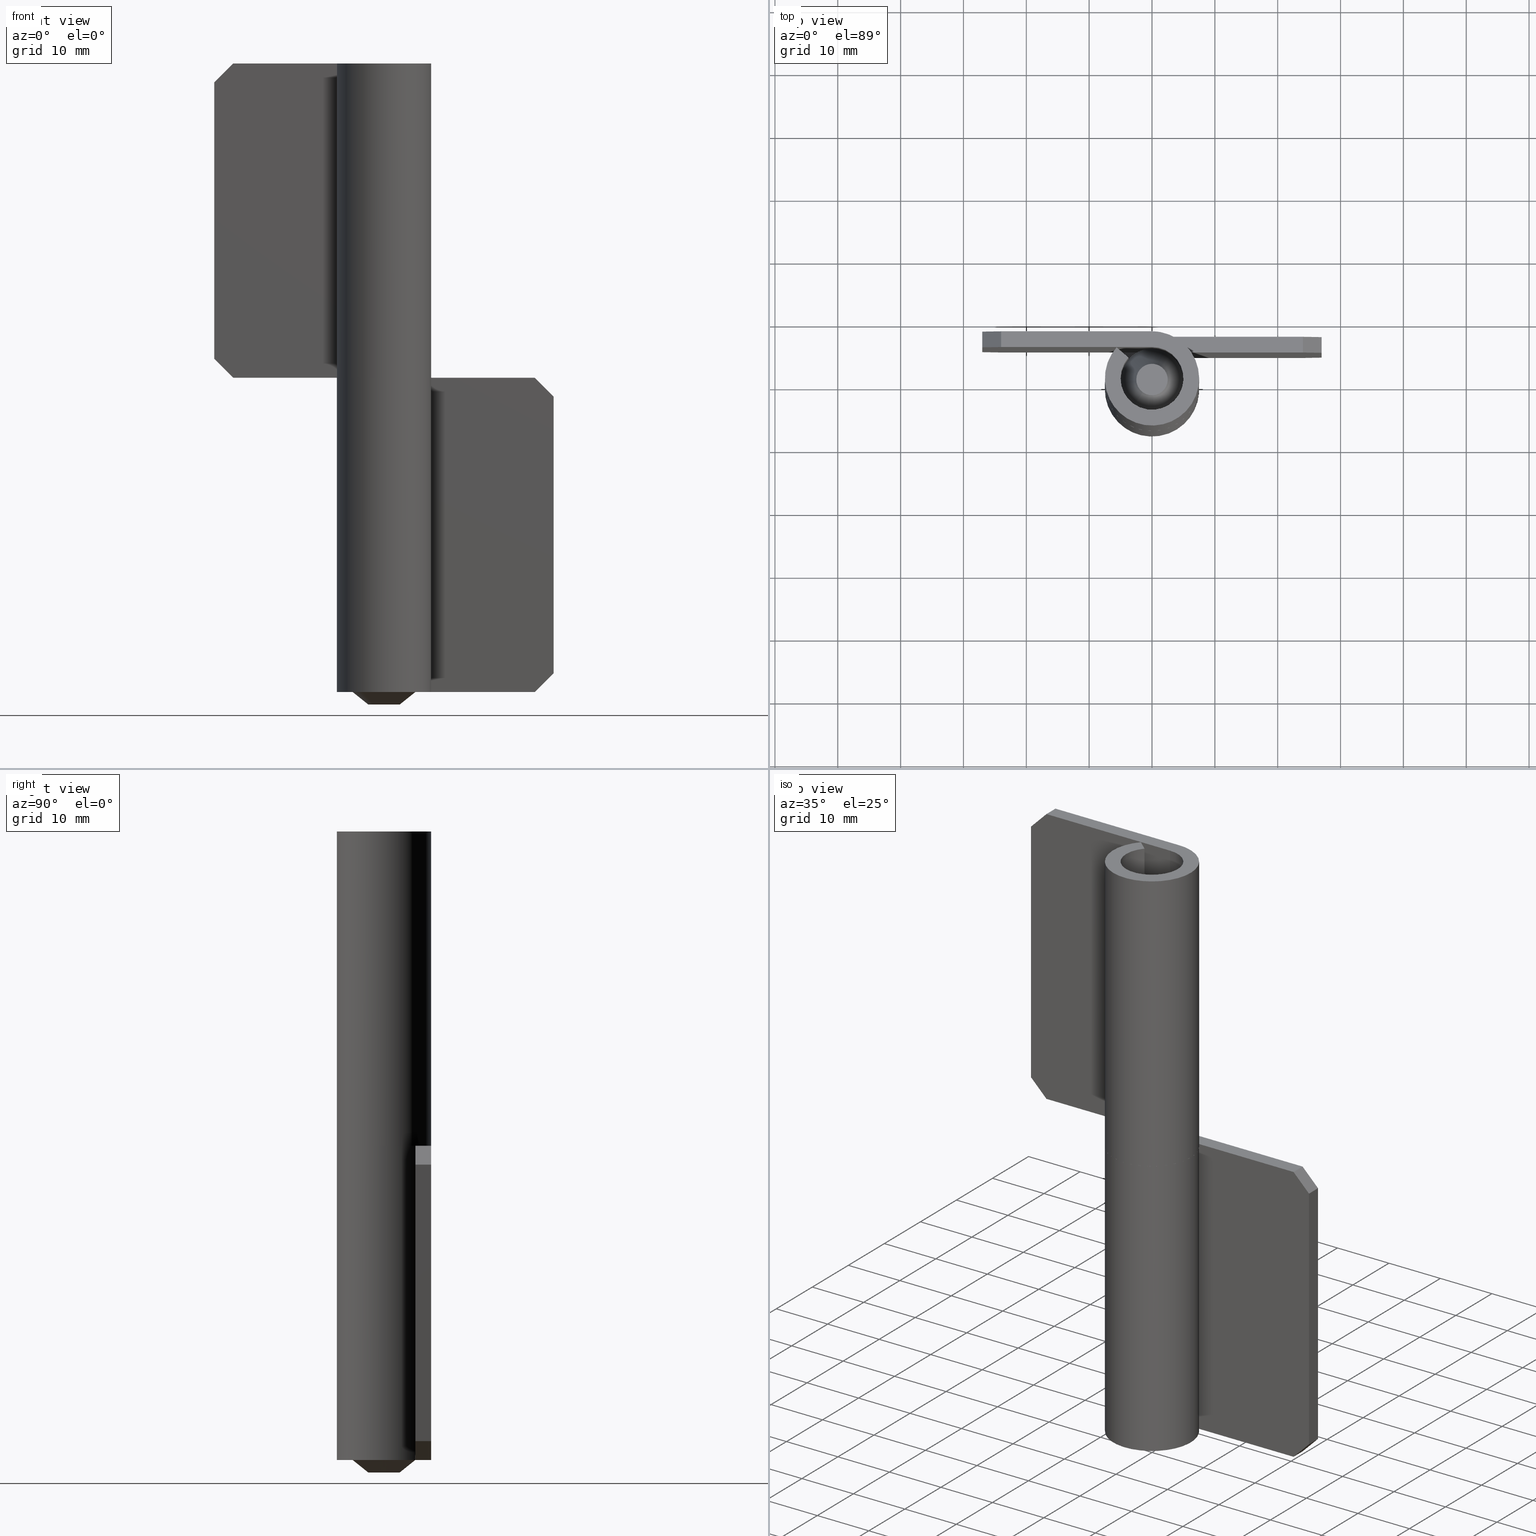
[diagram: canonical four-view strip — front | top / right | iso, engineering-drawing reading convention]
A machine part, canonical four-view strip (front | top / right | iso — engineering-drawing reading convention). The complete STEP part file that produces these views, byte-faithful:
ISO-10303-21;
HEADER;
/****************************************************************
 * Generated by software with PDE/Lib inside                    *
 * PDElib Version 4.4.1-0003, patched  Thursday August 19 11:58 *
 * International Technegroup Inc. (www.iti-oh.com)              *
 ****************************************************************/
FILE_DESCRIPTION((''),'2;1');
FILE_NAME('','2005-04-20T08:48:33',(''),(''),'','CADfix','');
FILE_SCHEMA(('AUTOMOTIVE_DESIGN'));
ENDSEC;
DATA;
#5=APPLICATION_CONTEXT('automotive design');
#6=APPLICATION_PROTOCOL_DEFINITION('Draft International Standard','automotive_design',1998,#5);
#7=PRODUCT_CONTEXT('None',#5,'mechanical');
#8=PRODUCT('shaft','','None',(#7));
#9=PRODUCT_RELATED_PRODUCT_CATEGORY('part','description',(#8));
#10=PRODUCT_DEFINITION_FORMATION('None','None',#8);
#11=PRODUCT_DEFINITION_CONTEXT('part definition',#5,'design');
#12=PRODUCT_DEFINITION('None','None',#10,#11);
#18=(NAMED_UNIT(*)PLANE_ANGLE_UNIT()SI_UNIT($,.RADIAN.));
#19=DIMENSIONAL_EXPONENTS(0.0,0.0,0.0,0.0,0.0,0.0,0.0);
#20=PLANE_ANGLE_MEASURE_WITH_UNIT(PLANE_ANGLE_MEASURE(0.017453292500000),#18);
#24=(CONVERSION_BASED_UNIT('DEGREE',#20)NAMED_UNIT(#19)PLANE_ANGLE_UNIT());
#28=(NAMED_UNIT(*)SI_UNIT($,.STERADIAN.)SOLID_ANGLE_UNIT());
#32=(LENGTH_UNIT()NAMED_UNIT(*)SI_UNIT(.MILLI.,.METRE.));
#34=UNCERTAINTY_MEASURE_WITH_UNIT(LENGTH_MEASURE(0.001000000000000),#32,'DISTANCE_ACCURACY_VALUE','');
#36=(GEOMETRIC_REPRESENTATION_CONTEXT(3)GLOBAL_UNCERTAINTY_ASSIGNED_CONTEXT((#34))GLOBAL_UNIT_ASSIGNED_CONTEXT((#24,#28,#32))REPRESENTATION_CONTEXT('None','None'));
#37=AXIS2_PLACEMENT_3D('',#38,#39,#40);
#38=CARTESIAN_POINT('',(0.0,0.0,0.0));
#39=DIRECTION('',(0.0,0.0,1.0));
#40=DIRECTION('',(1.0,0.0,0.0));
#41=ADVANCED_BREP_SHAPE_REPRESENTATION('',(#37,#543,#1365),#36);
#42=PRODUCT_DEFINITION_SHAPE('','',#12);
#43=SHAPE_DEFINITION_REPRESENTATION(#42,#41);
#44=CARTESIAN_POINT('',(-1.426116196761196,-1.976716081052925,90.125001549995361));
#45=CARTESIAN_POINT('',(-2.362430250993303,-1.301205495190595,90.125001549995361));
#46=CARTESIAN_POINT('',(-2.432914182235898,-0.148803405986821,90.125001549995361));
#47=CARTESIAN_POINT('',(-2.581717588222718,2.284110776249078,90.125001549995361));
#48=CARTESIAN_POINT('',(-0.148803405986821,2.432914182235898,90.125001549995361));
#49=CARTESIAN_POINT('',(2.284110776249078,2.581717588222718,90.125001549995361));
#50=CARTESIAN_POINT('',(2.432914182235898,0.148803405986821,90.125001549995361));
#51=CARTESIAN_POINT('',(2.581717588222718,-2.284110776249078,90.125001549995361));
#52=CARTESIAN_POINT('',(0.148803405986821,-2.432914182235898,90.125001549995361));
#53=CARTESIAN_POINT('',(-2.962896362248332,-4.106821659448706,84.871811411440774));
#54=CARTESIAN_POINT('',(-4.908180702687559,-2.703382120610845,84.871811411440760));
#55=CARTESIAN_POINT('',(-5.054617987356177,-0.309153679966472,84.871811411440760));
#56=CARTESIAN_POINT('',(-5.363771667322648,4.745464307389706,84.871811411440746));
#57=CARTESIAN_POINT('',(-0.309153679966472,5.054617987356177,84.871811411440760));
#58=CARTESIAN_POINT('',(4.745464307389706,5.363771667322648,84.871811411440746));
#59=CARTESIAN_POINT('',(5.054617987356177,0.309153679966472,84.871811411440760));
#60=CARTESIAN_POINT('',(5.363771667322648,-4.745464307389706,84.871811411440746));
#61=CARTESIAN_POINT('',(0.309153679966472,-5.054617987356177,84.871811411440760));
#69=(BOUNDED_SURFACE()B_SPLINE_SURFACE(2,1,((#44,#53),(#45,#54),(#46,#55),(#47,#56),(#48,#57),(#49,#58),(#50,#59),(#51,#60),(#52,#61)),.UNSPECIFIED.,.F.,.F.,.U.)B_SPLINE_SURFACE_WITH_KNOTS((3,2,2,2,3),(2,2),(0.0,4.698632460150294,13.089047567561529,21.479462674972769,29.869877782384009),(0.0,5.873248648231651),.UNSPECIFIED.)GEOMETRIC_REPRESENTATION_ITEM()RATIONAL_B_SPLINE_SURFACE(((0.855662221768731,0.855662221768731),(0.835979797464467,0.835979797464467),(1.0,1.0),(0.707106781186548,0.707106781186548),(1.0,1.0),(0.707106781186548,0.707106781186548),(1.0,1.0),(0.707106781186548,0.707106781186548),(1.0,1.0)))REPRESENTATION_ITEM('')SURFACE());
#70=CARTESIAN_POINT('',(-1.462684434031080,-2.027402709834718,89.999999999987295));
#71=VERTEX_POINT('',#70);
#72=CARTESIAN_POINT('',(-2.499961499977570,0.0,90.0));
#73=VERTEX_POINT('',#72);
#74=CARTESIAN_POINT('',(-1.462684434031080,-2.027402709834717,89.999999999987295));
#75=CARTESIAN_POINT('',(-2.499961499977569,-1.279051624475833,89.999999999999986));
#76=CARTESIAN_POINT('',(-2.499961499977570,0.0,90.0));
#84=(BOUNDED_CURVE()B_SPLINE_CURVE(2,(#74,#75,#76),.UNSPECIFIED.,.F.,.U.)B_SPLINE_CURVE_WITH_KNOTS((3,3),(0.850743050402046,1.0),.UNSPECIFIED.)CURVE()GEOMETRIC_REPRESENTATION_ITEM()RATIONAL_B_SPLINE_CURVE((0.859068214718229,0.825134606407912,1.0))REPRESENTATION_ITEM(''));
#85=EDGE_CURVE('',#71,#73,#84,.T.);
#86=ORIENTED_EDGE('',*,*,#85,.T.);
#87=CARTESIAN_POINT('',(2.499961499977570,0.0,90.0));
#88=VERTEX_POINT('',#87);
#89=CARTESIAN_POINT('',(-2.499961499977570,0.0,90.0));
#90=CARTESIAN_POINT('',(-2.499961499977571,2.499961499977571,90.0));
#91=CARTESIAN_POINT('',(0.0,2.499961499977570,90.0));
#92=CARTESIAN_POINT('',(2.499961499977571,2.499961499977571,90.0));
#93=CARTESIAN_POINT('',(2.499961499977570,0.0,90.0));
#101=(BOUNDED_CURVE()B_SPLINE_CURVE(2,(#89,#90,#91,#92,#93),.UNSPECIFIED.,.F.,.U.)B_SPLINE_CURVE_WITH_KNOTS((3,2,3),(0.0,0.250000000000000,0.500000000000000),.UNSPECIFIED.)CURVE()GEOMETRIC_REPRESENTATION_ITEM()RATIONAL_B_SPLINE_CURVE((1.0,0.707106781186547,1.0,0.707106781186547,1.0))REPRESENTATION_ITEM(''));
#102=EDGE_CURVE('',#73,#88,#101,.T.);
#103=ORIENTED_EDGE('',*,*,#102,.T.);
#104=CARTESIAN_POINT('',(0.152618999370396,-2.495298567869647,89.999999999835609));
#105=VERTEX_POINT('',#104);
#106=CARTESIAN_POINT('',(2.499961499977570,0.0,90.0));
#107=CARTESIAN_POINT('',(2.499961499977570,-2.351728948363010,90.0));
#108=CARTESIAN_POINT('',(0.152618999370396,-2.495298567869647,89.999999999835609));
#116=(BOUNDED_CURVE()B_SPLINE_CURVE(2,(#106,#107,#108),.UNSPECIFIED.,.F.,.U.)B_SPLINE_CURVE_WITH_KNOTS((3,3),(0.500000000000000,0.739332962117724),.UNSPECIFIED.)CURVE()GEOMETRIC_REPRESENTATION_ITEM()RATIONAL_B_SPLINE_CURVE((1.0,0.719603993428727,0.976072041406923))REPRESENTATION_ITEM(''));
#117=EDGE_CURVE('',#88,#105,#116,.T.);
#118=ORIENTED_EDGE('',*,*,#117,.T.);
#119=CARTESIAN_POINT('',(0.305242697684570,-4.990673992108704,84.999938000186006));
#120=VERTEX_POINT('',#119);
#121=CARTESIAN_POINT('',(0.152618999370396,-2.495298567869647,89.999999999835609));
#122=CARTESIAN_POINT('',(0.305242697684570,-4.990673992108704,84.999938000186006));
#123=QUASI_UNIFORM_CURVE('',1,(#121,#122),.UNSPECIFIED.,.F.,.U.);
#124=EDGE_CURVE('',#105,#120,#123,.T.);
#125=ORIENTED_EDGE('',*,*,#124,.T.);
#126=CARTESIAN_POINT('',(5.0,0.0,84.999938000186006));
#127=VERTEX_POINT('',#126);
#128=CARTESIAN_POINT('',(5.0,0.0,84.999938000186006));
#129=CARTESIAN_POINT('',(5.0,-4.703530334489630,84.999938000186006));
#130=CARTESIAN_POINT('',(0.305242697684570,-4.990673992108704,84.999938000186006));
#138=(BOUNDED_CURVE()B_SPLINE_CURVE(2,(#128,#129,#130),.UNSPECIFIED.,.F.,.U.)B_SPLINE_CURVE_WITH_KNOTS((3,3),(0.500000000000000,0.739332962240546),.UNSPECIFIED.)CURVE()GEOMETRIC_REPRESENTATION_ITEM()RATIONAL_B_SPLINE_CURVE((1.0,0.719603993284832,0.976072041670154))REPRESENTATION_ITEM(''));
#139=EDGE_CURVE('',#127,#120,#138,.T.);
#140=ORIENTED_EDGE('',*,*,#139,.F.);
#141=CARTESIAN_POINT('',(0.570503323870676,4.967345967159173,84.999938000186006));
#142=VERTEX_POINT('',#141);
#143=CARTESIAN_POINT('',(0.570503323870676,4.967345967159173,84.999938000186006));
#144=CARTESIAN_POINT('',(4.999999999999999,4.458615028289418,84.999938000186006));
#145=CARTESIAN_POINT('',(5.0,0.0,84.999938000186006));
#153=(BOUNDED_CURVE()B_SPLINE_CURVE(2,(#143,#144,#145),.UNSPECIFIED.,.F.,.U.)B_SPLINE_CURVE_WITH_KNOTS((3,3),(0.269767755888116,0.500000000000000),.UNSPECIFIED.)CURVE()GEOMETRIC_REPRESENTATION_ITEM()RATIONAL_B_SPLINE_CURVE((0.957343736437965,0.730266147789703,1.0))REPRESENTATION_ITEM(''));
#154=EDGE_CURVE('',#142,#127,#153,.T.);
#155=ORIENTED_EDGE('',*,*,#154,.F.);
#156=CARTESIAN_POINT('',(-5.0,0.0,84.999938000186006));
#157=VERTEX_POINT('',#156);
#158=CARTESIAN_POINT('',(-5.0,0.0,84.999938000186006));
#159=CARTESIAN_POINT('',(-5.000000000000001,5.000000000000001,84.999938000186020));
#160=CARTESIAN_POINT('',(0.0,5.0,84.999938000186006));
#161=CARTESIAN_POINT('',(0.286186175297004,5.0,84.999938000186006));
#162=CARTESIAN_POINT('',(0.570503323870676,4.967345967159173,84.999938000186006));
#170=(BOUNDED_CURVE()B_SPLINE_CURVE(2,(#158,#159,#160,#161,#162),.UNSPECIFIED.,.F.,.U.)B_SPLINE_CURVE_WITH_KNOTS((3,2,3),(0.0,0.250000000000000,0.269767755888116),.UNSPECIFIED.)CURVE()GEOMETRIC_REPRESENTATION_ITEM()RATIONAL_B_SPLINE_CURVE((1.0,0.707106781186548,1.0,0.976840633396844,0.957343736437965))REPRESENTATION_ITEM(''));
#171=EDGE_CURVE('',#157,#142,#170,.T.);
#172=ORIENTED_EDGE('',*,*,#171,.F.);
#173=CARTESIAN_POINT('',(-2.925413919224987,-4.054867864828848,84.999938000182610));
#174=VERTEX_POINT('',#173);
#175=CARTESIAN_POINT('',(-2.925413919224988,-4.054867864828848,84.999938000182610));
#176=CARTESIAN_POINT('',(-4.999999999999999,-2.558142644731232,84.999938000186006));
#177=CARTESIAN_POINT('',(-5.0,0.0,84.999938000186006));
#185=(BOUNDED_CURVE()B_SPLINE_CURVE(2,(#175,#176,#177),.UNSPECIFIED.,.F.,.U.)B_SPLINE_CURVE_WITH_KNOTS((3,3),(0.850743050384720,1.0),.UNSPECIFIED.)CURVE()GEOMETRIC_REPRESENTATION_ITEM()RATIONAL_B_SPLINE_CURVE((0.859068214726108,0.825134606387613,1.0))REPRESENTATION_ITEM(''));
#186=EDGE_CURVE('',#174,#157,#185,.T.);
#187=ORIENTED_EDGE('',*,*,#186,.F.);
#188=CARTESIAN_POINT('',(-1.462684434031080,-2.027402709834718,89.999999999987295));
#189=CARTESIAN_POINT('',(-2.925413919224987,-4.054867864828848,84.999938000182610));
#190=QUASI_UNIFORM_CURVE('',1,(#188,#189),.UNSPECIFIED.,.F.,.U.);
#191=EDGE_CURVE('',#71,#174,#190,.T.);
#192=ORIENTED_EDGE('',*,*,#191,.F.);
#193=EDGE_LOOP('',(#86,#103,#118,#125,#140,#155,#172,#187,#192));
#194=FACE_OUTER_BOUND('',#193,.T.);
#195=ADVANCED_FACE('',(#194),#69,.T.);
#196=CARTESIAN_POINT('',(0.148803405986821,-2.432914182235898,90.125001549995361));
#197=CARTESIAN_POINT('',(-0.720123013832611,-2.486059998790035,90.125001549995361));
#198=CARTESIAN_POINT('',(-1.426116196761196,-1.976716081052925,90.125001549995361));
#199=CARTESIAN_POINT('',(0.309153679966472,-5.054617987356177,84.871811411440760));
#200=CARTESIAN_POINT('',(-1.496126236348488,-5.165033637143047,84.871811411440760));
#201=CARTESIAN_POINT('',(-2.962896362248332,-4.106821659448706,84.871811411440774));
#209=(BOUNDED_SURFACE()B_SPLINE_SURFACE(2,1,((#196,#199),(#197,#200),(#198,#201)),.UNSPECIFIED.,.F.,.F.,.U.)B_SPLINE_SURFACE_WITH_KNOTS((3,3),(2,2),(0.0,3.682684026167844),(0.0,5.873248648231646),.UNSPECIFIED.)GEOMETRIC_REPRESENTATION_ITEM()RATIONAL_B_SPLINE_SURFACE(((1.0,1.0),(0.871126983722081,0.871126983722081),(0.855662221768731,0.855662221768731)))REPRESENTATION_ITEM('')SURFACE());
#210=CARTESIAN_POINT('',(0.152618999370396,-2.495298567869647,89.999999999835609));
#211=CARTESIAN_POINT('',(0.076380732865295,-2.499961499977569,90.0));
#212=CARTESIAN_POINT('',(0.0,-2.499961499977570,90.0));
#213=CARTESIAN_POINT('',(-0.807678508430218,-2.499961499977570,90.000000000000014));
#214=CARTESIAN_POINT('',(-1.462684434031080,-2.027402709834718,89.999999999987310));
#222=(BOUNDED_CURVE()B_SPLINE_CURVE(2,(#210,#211,#212,#213,#214),.UNSPECIFIED.,.F.,.U.)B_SPLINE_CURVE_WITH_KNOTS((3,2,3),(0.739332962117725,0.750000000000000,0.850743050402046),.UNSPECIFIED.)CURVE()GEOMETRIC_REPRESENTATION_ITEM()RATIONAL_B_SPLINE_CURVE((0.976072041406925,0.987502787757822,1.0,0.881972174778636,0.859068214718229))REPRESENTATION_ITEM(''));
#223=EDGE_CURVE('',#105,#71,#222,.T.);
#224=ORIENTED_EDGE('',*,*,#223,.T.);
#225=ORIENTED_EDGE('',*,*,#191,.T.);
#226=CARTESIAN_POINT('',(0.305242697684570,-4.990673992108704,84.999938000186006));
#227=CARTESIAN_POINT('',(0.152763816513573,-5.000000000000001,84.999938000186020));
#228=CARTESIAN_POINT('',(0.0,-5.0,84.999938000186006));
#229=CARTESIAN_POINT('',(-1.615381893441116,-5.0,84.999938000186006));
#230=CARTESIAN_POINT('',(-2.925413919224987,-4.054867864828848,84.999938000182624));
#238=(BOUNDED_CURVE()B_SPLINE_CURVE(2,(#226,#227,#228,#229,#230),.UNSPECIFIED.,.F.,.U.)B_SPLINE_CURVE_WITH_KNOTS((3,2,3),(0.739332962240546,0.750000000000000,0.850743050384721),.UNSPECIFIED.)CURVE()GEOMETRIC_REPRESENTATION_ITEM()RATIONAL_B_SPLINE_CURVE((0.976072041670153,0.987502787901715,1.0,0.881972174798933,0.859068214726107))REPRESENTATION_ITEM(''));
#239=EDGE_CURVE('',#120,#174,#238,.T.);
#240=ORIENTED_EDGE('',*,*,#239,.F.);
#241=ORIENTED_EDGE('',*,*,#124,.F.);
#242=EDGE_LOOP('',(#224,#225,#240,#241));
#243=FACE_OUTER_BOUND('',#242,.T.);
#244=ADVANCED_FACE('',(#243),#209,.T.);
#245=CARTESIAN_POINT('',(0.570503323701802,4.967345967178567,87.124936450190688));
#246=CARTESIAN_POINT('',(4.734779799566036,4.489075762930407,87.124936450190674));
#247=CARTESIAN_POINT('',(4.990673992109334,0.305242697674285,87.124936450190674));
#248=CARTESIAN_POINT('',(5.295916689783620,-4.685431294435048,87.124936450190674));
#249=CARTESIAN_POINT('',(0.305242697674285,-4.990673992109334,87.124936450190674));
#250=CARTESIAN_POINT('',(0.570503323701802,4.967345967178567,-2.178123411254774));
#251=CARTESIAN_POINT('',(4.734779799566036,4.489075762930407,-2.178123411254774));
#252=CARTESIAN_POINT('',(4.990673992109334,0.305242697674285,-2.178123411254774));
#253=CARTESIAN_POINT('',(5.295916689783620,-4.685431294435048,-2.178123411254774));
#254=CARTESIAN_POINT('',(0.305242697674285,-4.990673992109334,-2.178123411254774));
#262=(BOUNDED_SURFACE()B_SPLINE_SURFACE(2,1,((#245,#250),(#246,#251),(#247,#252),(#248,#253),(#249,#254)),.UNSPECIFIED.,.F.,.F.,.U.)B_SPLINE_SURFACE_WITH_KNOTS((3,2,3),(2,2),(0.0,7.290158697766469,15.574429945228371),(0.0,89.303059861445462),.UNSPECIFIED.)GEOMETRIC_REPRESENTATION_ITEM()RATIONAL_B_SPLINE_SURFACE(((0.938140952186599,0.938140952186599),(0.742253967444162,0.742253967444162),(1.0,1.0),(0.707106781186548,0.707106781186548),(1.0,1.0)))REPRESENTATION_ITEM('')SURFACE());
#263=CARTESIAN_POINT('',(0.570503323848359,4.967345967161736,2.485200E-015));
#264=VERTEX_POINT('',#263);
#265=CARTESIAN_POINT('',(5.0,0.0,0.0));
#266=VERTEX_POINT('',#265);
#267=CARTESIAN_POINT('',(0.570503323848359,4.967345967161736,2.485200E-015));
#268=CARTESIAN_POINT('',(5.0,4.458615028329743,0.0));
#269=CARTESIAN_POINT('',(5.0,0.0,0.0));
#277=(BOUNDED_CURVE()B_SPLINE_CURVE(2,(#267,#268,#269),.UNSPECIFIED.,.F.,.U.)B_SPLINE_CURVE_WITH_KNOTS((3,3),(0.269767755886596,0.500000000000000),.UNSPECIFIED.)CURVE()GEOMETRIC_REPRESENTATION_ITEM()RATIONAL_B_SPLINE_CURVE((0.957343736440965,0.730266147787922,1.0))REPRESENTATION_ITEM(''));
#278=EDGE_CURVE('',#264,#266,#277,.T.);
#279=ORIENTED_EDGE('',*,*,#278,.F.);
#280=CARTESIAN_POINT('',(0.570503323870676,4.967345967159173,84.999938000186006));
#281=CARTESIAN_POINT('',(0.570503323848359,4.967345967161736,2.485200E-015));
#282=QUASI_UNIFORM_CURVE('',1,(#280,#281),.UNSPECIFIED.,.F.,.U.);
#283=EDGE_CURVE('',#142,#264,#282,.T.);
#284=ORIENTED_EDGE('',*,*,#283,.F.);
#285=ORIENTED_EDGE('',*,*,#154,.T.);
#286=ORIENTED_EDGE('',*,*,#139,.T.);
#287=CARTESIAN_POINT('',(0.348769088438834,-4.987630330404322,3.113462E-011));
#288=VERTEX_POINT('',#287);
#289=CARTESIAN_POINT('',(0.305242697684570,-4.990673992108704,84.999938000186006));
#290=CARTESIAN_POINT('',(0.348769088438834,-4.987630330404322,3.113462E-011));
#291=QUASI_UNIFORM_CURVE('',1,(#289,#290),.UNSPECIFIED.,.F.,.U.);
#292=EDGE_CURVE('',#120,#288,#291,.T.);
#293=ORIENTED_EDGE('',*,*,#292,.T.);
#294=CARTESIAN_POINT('',(5.0,0.0,0.0));
#295=CARTESIAN_POINT('',(4.999993359719275,-4.662480469988625,1.556731E-011));
#296=CARTESIAN_POINT('',(0.348769088438834,-4.987630330404322,3.113462E-011));
#304=(BOUNDED_CURVE()B_SPLINE_CURVE(2,(#294,#295,#296),.UNSPECIFIED.,.F.,.U.)B_SPLINE_CURVE_WITH_KNOTS((3,3),(0.500000000000000,0.737829682987324),.UNSPECIFIED.)CURVE()GEOMETRIC_REPRESENTATION_ITEM()RATIONAL_B_SPLINE_CURVE((1.0,0.721365194481839,0.972871408688629))REPRESENTATION_ITEM(''));
#305=EDGE_CURVE('',#266,#288,#304,.T.);
#306=ORIENTED_EDGE('',*,*,#305,.F.);
#307=EDGE_LOOP('',(#279,#284,#285,#286,#293,#306));
#308=FACE_OUTER_BOUND('',#307,.T.);
#309=ADVANCED_FACE('',(#308),#262,.T.);
#310=CARTESIAN_POINT('',(0.422667906112319,-4.983491958689545,87.124936450190631));
#311=CARTESIAN_POINT('',(0.364242809468650,-4.987065390682821,87.124936450190702));
#312=CARTESIAN_POINT('',(-4.685431294435048,-5.295916689783620,87.124936450190674));
#313=CARTESIAN_POINT('',(-4.990673992109334,-0.305242697674285,87.124936450190674));
#314=CARTESIAN_POINT('',(-5.295916689783620,4.685431294435048,87.124936450190674));
#315=CARTESIAN_POINT('',(-0.305242697674285,4.990673992109334,87.124936450190674));
#316=CARTESIAN_POINT('',(0.133656090482733,5.017518191973888,87.124936450190674));
#317=CARTESIAN_POINT('',(0.610406387462546,4.962763071070302,87.124936450190674));
#318=CARTESIAN_POINT('',(0.650511779054439,4.958156937462392,87.124936450190674));
#319=CARTESIAN_POINT('',(0.422667906112319,-4.983491958689545,-2.178123411254773));
#320=CARTESIAN_POINT('',(0.364242809468650,-4.987065390682821,-2.178123411254774));
#321=CARTESIAN_POINT('',(-4.685431294435048,-5.295916689783620,-2.178123411254774));
#322=CARTESIAN_POINT('',(-4.990673992109334,-0.305242697674285,-2.178123411254774));
#323=CARTESIAN_POINT('',(-5.295916689783620,4.685431294435048,-2.178123411254774));
#324=CARTESIAN_POINT('',(-0.305242697674285,4.990673992109334,-2.178123411254774));
#325=CARTESIAN_POINT('',(0.133656090482733,5.017518191973888,-2.178123411254774));
#326=CARTESIAN_POINT('',(0.610406387462546,4.962763071070302,-2.178123411254774));
#327=CARTESIAN_POINT('',(0.650511779054439,4.958156937462392,-2.178123411254773));
#335=(BOUNDED_SURFACE()B_SPLINE_SURFACE(2,1,((#310,#319),(#311,#320),(#312,#321),(#313,#322),(#314,#323),(#315,#324),(#316,#325),(#317,#326),(#318,#327)),.UNSPECIFIED.,.F.,.F.,.U.)B_SPLINE_SURFACE_WITH_KNOTS((3,1,2,2,1,3),(2,2),(0.0,0.139185773135275,8.423457020597175,16.707728268059071,17.701840817754501,17.789909675773391),(0.0,89.303059861445462),.UNSPECIFIED.)GEOMETRIC_REPRESENTATION_ITEM()RATIONAL_B_SPLINE_SURFACE(((1.009841920402865,1.009841920402865),(1.004920960201432,1.004920960201432),(0.707106781186548,0.707106781186548),(1.0,1.0),(0.707106781186548,0.707106781186548),(1.0,1.0),(0.964852813742386,0.964852813742386),(0.935774536891371,0.935774536891371),(0.933408121596144,0.933408121596144)))REPRESENTATION_ITEM('')SURFACE());
#336=CARTESIAN_POINT('',(-0.392295479203382,4.984586668699309,6.226368E-011));
#337=VERTEX_POINT('',#336);
#338=CARTESIAN_POINT('',(-0.392295479203382,4.984586668699310,6.226368E-011));
#339=CARTESIAN_POINT('',(-0.196450535598988,4.999999999999999,0.0));
#340=CARTESIAN_POINT('',(0.0,5.0,0.0));
#341=CARTESIAN_POINT('',(0.286186175274470,4.999999999999999,0.0));
#342=CARTESIAN_POINT('',(0.570503323848359,4.967345967161738,2.485200E-015));
#350=(BOUNDED_CURVE()B_SPLINE_CURVE(2,(#338,#339,#340,#341,#342),.UNSPECIFIED.,.F.,.U.)B_SPLINE_CURVE_WITH_KNOTS((3,2,3),(0.236331300594383,0.250000000000000,0.269767755886596),.UNSPECIFIED.)CURVE()GEOMETRIC_REPRESENTATION_ITEM()RATIONAL_B_SPLINE_CURVE((0.969723356091712,0.983986122536382,1.0,0.976840633398626,0.957343736440964))REPRESENTATION_ITEM(''));
#351=EDGE_CURVE('',#337,#264,#350,.T.);
#352=ORIENTED_EDGE('',*,*,#351,.F.);
#353=CARTESIAN_POINT('',(-5.0,0.0,0.0));
#354=VERTEX_POINT('',#353);
#355=CARTESIAN_POINT('',(-5.0,0.0,0.0));
#356=CARTESIAN_POINT('',(-5.0,4.621952457252936,0.0));
#357=CARTESIAN_POINT('',(-0.392295479203382,4.984586668699309,6.226368E-011));
#365=(BOUNDED_CURVE()B_SPLINE_CURVE(2,(#355,#356,#357),.UNSPECIFIED.,.F.,.U.)B_SPLINE_CURVE_WITH_KNOTS((3,3),(0.0,0.236331300594383),.UNSPECIFIED.)CURVE()GEOMETRIC_REPRESENTATION_ITEM()RATIONAL_B_SPLINE_CURVE((1.0,0.723120658650166,0.969723356091712))REPRESENTATION_ITEM(''));
#366=EDGE_CURVE('',#354,#337,#365,.T.);
#367=ORIENTED_EDGE('',*,*,#366,.F.);
#368=CARTESIAN_POINT('',(0.348769088438834,-4.987630330404322,3.113462E-011));
#369=CARTESIAN_POINT('',(0.174590783272690,-4.999813171430160,3.062769E-011));
#370=CARTESIAN_POINT('',(-0.000012832442678,-4.999816487521715,3.008407E-011));
#371=CARTESIAN_POINT('',(-5.000006192161953,-4.999911447959336,1.451675E-011));
#372=CARTESIAN_POINT('',(-5.0,0.0,0.0));
#380=(BOUNDED_CURVE()B_SPLINE_CURVE(2,(#368,#369,#370,#371,#372),.UNSPECIFIED.,.F.,.U.)B_SPLINE_CURVE_WITH_KNOTS((3,2,3),(0.737829682987324,0.750000000000000,1.0),.UNSPECIFIED.)CURVE()GEOMETRIC_REPRESENTATION_ITEM()RATIONAL_B_SPLINE_CURVE((0.972871408688629,0.985741586704709,1.0,0.707106781186548,1.0))REPRESENTATION_ITEM(''));
#381=EDGE_CURVE('',#288,#354,#380,.T.);
#382=ORIENTED_EDGE('',*,*,#381,.F.);
#383=ORIENTED_EDGE('',*,*,#292,.F.);
#384=ORIENTED_EDGE('',*,*,#239,.T.);
#385=ORIENTED_EDGE('',*,*,#186,.T.);
#386=ORIENTED_EDGE('',*,*,#171,.T.);
#387=ORIENTED_EDGE('',*,*,#283,.T.);
#388=EDGE_LOOP('',(#352,#367,#382,#383,#384,#385,#386,#387));
#389=FACE_OUTER_BOUND('',#388,.T.);
#390=ADVANCED_FACE('',(#389),#335,.T.);
#391=CARTESIAN_POINT('',(-0.191244045836608,2.429986000974294,-2.050000000000000));
#392=CARTESIAN_POINT('',(-2.621230046810902,2.238741955137687,-2.050000000000001));
#393=CARTESIAN_POINT('',(-2.429986000974294,-0.191244045836608,-2.050000000000000));
#394=CARTESIAN_POINT('',(-2.238741955137687,-2.621230046810902,-2.050000000000001));
#395=CARTESIAN_POINT('',(0.191244045836608,-2.429986000974294,-2.050000000000000));
#396=CARTESIAN_POINT('',(-0.397321764459293,5.048451685357922,0.051250000000000));
#397=CARTESIAN_POINT('',(-5.445773449817216,4.651129920898629,0.051250000000000));
#398=CARTESIAN_POINT('',(-5.048451685357922,-0.397321764459293,0.051250000000000));
#399=CARTESIAN_POINT('',(-4.651129920898629,-5.445773449817216,0.051250000000000));
#400=CARTESIAN_POINT('',(0.397321764459293,-5.048451685357922,0.051250000000000));
#408=(BOUNDED_SURFACE()B_SPLINE_SURFACE(2,1,((#391,#396),(#392,#397),(#393,#398),(#394,#399),(#395,#400)),.UNSPECIFIED.,.F.,.F.,.U.)B_SPLINE_SURFACE_WITH_KNOTS((3,2,3),(2,2),(0.0,8.390413472820013,16.780826945640030),(0.0,3.363641200976607),.UNSPECIFIED.)GEOMETRIC_REPRESENTATION_ITEM()RATIONAL_B_SPLINE_SURFACE(((1.0,1.0),(0.707106781186548,0.707106781186548),(1.0,1.0),(0.707106781186548,0.707106781186548),(1.0,1.0)))REPRESENTATION_ITEM('')SURFACE());
#409=ORIENTED_EDGE('',*,*,#366,.T.);
#410=CARTESIAN_POINT('',(-0.196147740840807,2.492293334420906,-1.999999999834107));
#411=VERTEX_POINT('',#410);
#412=CARTESIAN_POINT('',(-0.196147740840807,2.492293334420906,-1.999999999834107));
#413=CARTESIAN_POINT('',(-0.392295479203382,4.984586668699309,6.226368E-011));
#414=QUASI_UNIFORM_CURVE('',1,(#412,#413),.UNSPECIFIED.,.F.,.U.);
#415=EDGE_CURVE('',#411,#337,#414,.T.);
#416=ORIENTED_EDGE('',*,*,#415,.F.);
#417=CARTESIAN_POINT('',(-2.499999999999800,0.0,-2.0));
#418=VERTEX_POINT('',#417);
#419=CARTESIAN_POINT('',(-2.499999999999800,0.0,-2.0));
#420=CARTESIAN_POINT('',(-2.499999999999800,2.310976226345795,-2.000000000000000));
#421=CARTESIAN_POINT('',(-0.196147740840807,2.492293334420906,-1.999999999834107));
#429=(BOUNDED_CURVE()B_SPLINE_CURVE(2,(#419,#420,#421),.UNSPECIFIED.,.F.,.U.)B_SPLINE_CURVE_WITH_KNOTS((3,3),(0.0,0.236331300425742),.UNSPECIFIED.)CURVE()GEOMETRIC_REPRESENTATION_ITEM()RATIONAL_B_SPLINE_CURVE((1.0,0.723120658847742,0.969723355739770))REPRESENTATION_ITEM(''));
#430=EDGE_CURVE('',#418,#411,#429,.T.);
#431=ORIENTED_EDGE('',*,*,#430,.F.);
#432=CARTESIAN_POINT('',(0.196147740840807,-2.492293334420906,-1.999999999834107));
#433=VERTEX_POINT('',#432);
#434=CARTESIAN_POINT('',(0.196147740840807,-2.492293334420906,-1.999999999834107));
#435=CARTESIAN_POINT('',(0.098225269031090,-2.499999999999801,-2.000000000000000));
#436=CARTESIAN_POINT('',(0.0,-2.499999999999800,-2.0));
#437=CARTESIAN_POINT('',(-2.499999999999801,-2.499999999999801,-2.000000000000000));
#438=CARTESIAN_POINT('',(-2.499999999999800,0.0,-2.0));
#446=(BOUNDED_CURVE()B_SPLINE_CURVE(2,(#434,#435,#436,#437,#438),.UNSPECIFIED.,.F.,.U.)B_SPLINE_CURVE_WITH_KNOTS((3,2,3),(0.736331300425742,0.750000000000000,1.0),.UNSPECIFIED.)CURVE()GEOMETRIC_REPRESENTATION_ITEM()RATIONAL_B_SPLINE_CURVE((0.969723355739770,0.983986122338806,1.0,0.707106781186548,1.0))REPRESENTATION_ITEM(''));
#447=EDGE_CURVE('',#433,#418,#446,.T.);
#448=ORIENTED_EDGE('',*,*,#447,.F.);
#449=CARTESIAN_POINT('',(0.196147740840807,-2.492293334420906,-1.999999999834107));
#450=CARTESIAN_POINT('',(0.348769088438834,-4.987630330404322,3.113462E-011));
#451=QUASI_UNIFORM_CURVE('',1,(#449,#450),.UNSPECIFIED.,.F.,.U.);
#452=EDGE_CURVE('',#433,#288,#451,.T.);
#453=ORIENTED_EDGE('',*,*,#452,.T.);
#454=ORIENTED_EDGE('',*,*,#381,.T.);
#455=EDGE_LOOP('',(#409,#416,#431,#448,#453,#454));
#456=FACE_OUTER_BOUND('',#455,.T.);
#457=ADVANCED_FACE('',(#456),#408,.T.);
#458=CARTESIAN_POINT('',(0.136090730399281,-2.434326661036248,-2.050000000000000));
#459=CARTESIAN_POINT('',(0.163537146404821,-2.432166581250395,-2.050000000000000));
#460=CARTESIAN_POINT('',(2.621230046810902,-2.238741955137687,-2.050000000000001));
#461=CARTESIAN_POINT('',(2.429986000974294,0.191244045836608,-2.050000000000000));
#462=CARTESIAN_POINT('',(2.238741955137687,2.621230046810902,-2.050000000000001));
#463=CARTESIAN_POINT('',(-0.208429166472513,2.428633502648262,-2.050000000000000));
#464=CARTESIAN_POINT('',(-0.225513898285354,2.427288905093951,-2.050000000000000));
#465=CARTESIAN_POINT('',(0.282737216169299,-5.057469684884073,0.051250000000000));
#466=CARTESIAN_POINT('',(0.339758904806455,-5.052981980662307,0.051250000000000));
#467=CARTESIAN_POINT('',(5.445773449817216,-4.651129920898629,0.051250000000000));
#468=CARTESIAN_POINT('',(5.048451685357922,0.397321764459293,0.051250000000000));
#469=CARTESIAN_POINT('',(4.651129920898629,5.445773449817216,0.051250000000000));
#470=CARTESIAN_POINT('',(-0.433024954190688,5.045641783386979,0.051250000000000));
#471=CARTESIAN_POINT('',(-0.468519579706984,5.042848295775745,0.051250000000000));
#479=(BOUNDED_SURFACE()B_SPLINE_SURFACE(2,1,((#458,#465),(#459,#466),(#460,#467),(#461,#468),(#462,#469),(#463,#470),(#464,#471)),.UNSPECIFIED.,.F.,.F.,.U.)B_SPLINE_SURFACE_WITH_KNOTS((3,1,2,1,3),(2,2),(0.0,0.135937257717495,8.526350730537509,16.916764203357520,17.000927211072881),(0.0,3.364169448444921),.UNSPECIFIED.)GEOMETRIC_REPRESENTATION_ITEM()RATIONAL_B_SPLINE_SURFACE(((1.009490617142654,1.009490617142654),(1.004745308571327,1.004745308571327),(0.707106781186548,0.707106781186548),(1.0,1.0),(0.707106781186548,0.707106781186548),(1.002937968946897,1.002937968946897),(1.005875937893794,1.005875937893794)))REPRESENTATION_ITEM('')SURFACE());
#480=ORIENTED_EDGE('',*,*,#351,.T.);
#481=ORIENTED_EDGE('',*,*,#278,.T.);
#482=ORIENTED_EDGE('',*,*,#305,.T.);
#483=ORIENTED_EDGE('',*,*,#452,.F.);
#484=CARTESIAN_POINT('',(2.499999999999800,0.0,-2.0));
#485=VERTEX_POINT('',#484);
#486=CARTESIAN_POINT('',(2.499999999999800,0.0,-2.0));
#487=CARTESIAN_POINT('',(2.499999999999801,-2.310976226345808,-2.000000000000000));
#488=CARTESIAN_POINT('',(0.196147740840807,-2.492293334420906,-1.999999999834107));
#496=(BOUNDED_CURVE()B_SPLINE_CURVE(2,(#486,#487,#488),.UNSPECIFIED.,.F.,.U.)B_SPLINE_CURVE_WITH_KNOTS((3,3),(0.500000000000000,0.736331300425743),.UNSPECIFIED.)CURVE()GEOMETRIC_REPRESENTATION_ITEM()RATIONAL_B_SPLINE_CURVE((1.0,0.723120658847741,0.969723355739772))REPRESENTATION_ITEM(''));
#497=EDGE_CURVE('',#485,#433,#496,.T.);
#498=ORIENTED_EDGE('',*,*,#497,.F.);
#499=CARTESIAN_POINT('',(-0.196147740840807,2.492293334420906,-1.999999999834107));
#500=CARTESIAN_POINT('',(-0.098225269031090,2.499999999999800,-2.0));
#501=CARTESIAN_POINT('',(0.0,2.499999999999800,-2.0));
#502=CARTESIAN_POINT('',(2.499999999999801,2.499999999999801,-2.000000000000000));
#503=CARTESIAN_POINT('',(2.499999999999800,0.0,-2.0));
#511=(BOUNDED_CURVE()B_SPLINE_CURVE(2,(#499,#500,#501,#502,#503),.UNSPECIFIED.,.F.,.U.)B_SPLINE_CURVE_WITH_KNOTS((3,2,3),(0.236331300425742,0.250000000000000,0.500000000000000),.UNSPECIFIED.)CURVE()GEOMETRIC_REPRESENTATION_ITEM()RATIONAL_B_SPLINE_CURVE((0.969723355739770,0.983986122338806,1.0,0.707106781186548,1.0))REPRESENTATION_ITEM(''));
#512=EDGE_CURVE('',#411,#485,#511,.T.);
#513=ORIENTED_EDGE('',*,*,#512,.F.);
#514=ORIENTED_EDGE('',*,*,#415,.T.);
#515=EDGE_LOOP('',(#480,#481,#482,#483,#498,#513,#514));
#516=FACE_OUTER_BOUND('',#515,.T.);
#517=ADVANCED_FACE('',(#516),#479,.T.);
#518=CARTESIAN_POINT('',(2.749749990308811,-2.748986881816406,-2.0));
#519=CARTESIAN_POINT('',(-2.749750124419261,-2.748986881816406,-2.0));
#520=CARTESIAN_POINT('',(2.749749990308811,2.748987015926857,-2.0));
#521=CARTESIAN_POINT('',(-2.749750124419261,2.748987015926857,-2.0));
#522=B_SPLINE_SURFACE_WITH_KNOTS('',1,1,((#518,#520),(#519,#521)),.UNSPECIFIED.,.F.,.F.,.U.,(2,2),(2,2),(0.0,5.499500114728072),(0.0,5.497973897743263),.UNSPECIFIED.);
#523=ORIENTED_EDGE('',*,*,#430,.T.);
#524=ORIENTED_EDGE('',*,*,#512,.T.);
#525=ORIENTED_EDGE('',*,*,#497,.T.);
#526=ORIENTED_EDGE('',*,*,#447,.T.);
#527=EDGE_LOOP('',(#523,#524,#525,#526));
#528=FACE_OUTER_BOUND('',#527,.T.);
#529=ADVANCED_FACE('',(#528),#522,.T.);
#530=CARTESIAN_POINT('',(-2.749707784941608,-2.749633955085370,90.0));
#531=CARTESIAN_POINT('',(2.749707784941607,-2.749633955085370,90.0));
#532=CARTESIAN_POINT('',(-2.749707784941608,2.749704272582137,90.0));
#533=CARTESIAN_POINT('',(2.749707784941607,2.749704272582137,90.0));
#534=B_SPLINE_SURFACE_WITH_KNOTS('',1,1,((#530,#532),(#531,#533)),.UNSPECIFIED.,.F.,.F.,.U.,(2,2),(2,2),(0.0,5.499415569883215),(0.0,5.499338227667507),.UNSPECIFIED.);
#535=ORIENTED_EDGE('',*,*,#85,.F.);
#536=ORIENTED_EDGE('',*,*,#223,.F.);
#537=ORIENTED_EDGE('',*,*,#117,.F.);
#538=ORIENTED_EDGE('',*,*,#102,.F.);
#539=EDGE_LOOP('',(#535,#536,#537,#538));
#540=FACE_OUTER_BOUND('',#539,.T.);
#541=ADVANCED_FACE('',(#540),#534,.T.);
#542=CLOSED_SHELL('',(#195,#244,#309,#390,#457,#517,#529,#541));
#543=MANIFOLD_SOLID_BREP('shaft',#542);
#544=APPLICATION_CONTEXT('automotive design');
#545=APPLICATION_PROTOCOL_DEFINITION('Draft International Standard','automotive_design',1998,#544);
#546=PRODUCT_CONTEXT('None',#544,'mechanical');
#547=PRODUCT('hinge piece_B','','None',(#546));
#548=PRODUCT_RELATED_PRODUCT_CATEGORY('part','description',(#547));
#549=PRODUCT_DEFINITION_FORMATION('None','None',#547);
#550=PRODUCT_DEFINITION_CONTEXT('part definition',#544,'design');
#551=PRODUCT_DEFINITION('None','None',#549,#550);
#557=(NAMED_UNIT(*)PLANE_ANGLE_UNIT()SI_UNIT($,.RADIAN.));
#558=DIMENSIONAL_EXPONENTS(0.0,0.0,0.0,0.0,0.0,0.0,0.0);
#559=PLANE_ANGLE_MEASURE_WITH_UNIT(PLANE_ANGLE_MEASURE(0.017453292500000),#557);
#563=(CONVERSION_BASED_UNIT('DEGREE',#559)NAMED_UNIT(#558)PLANE_ANGLE_UNIT());
#567=(NAMED_UNIT(*)SI_UNIT($,.STERADIAN.)SOLID_ANGLE_UNIT());
#571=(LENGTH_UNIT()NAMED_UNIT(*)SI_UNIT(.MILLI.,.METRE.));
#573=UNCERTAINTY_MEASURE_WITH_UNIT(LENGTH_MEASURE(0.001000000000000),#571,'DISTANCE_ACCURACY_VALUE','');
#575=(GEOMETRIC_REPRESENTATION_CONTEXT(3)GLOBAL_UNCERTAINTY_ASSIGNED_CONTEXT((#573))GLOBAL_UNIT_ASSIGNED_CONTEXT((#563,#567,#571))REPRESENTATION_CONTEXT('None','None'));
#576=AXIS2_PLACEMENT_3D('',#577,#578,#579);
#577=CARTESIAN_POINT('',(0.0,0.0,0.0));
#578=DIRECTION('',(0.0,0.0,1.0));
#579=DIRECTION('',(1.0,0.0,0.0));
#580=ADVANCED_BREP_SHAPE_REPRESENTATION('',(#576,#934,#1381),#575);
#581=PRODUCT_DEFINITION_SHAPE('','',#551);
#582=SHAPE_DEFINITION_REPRESENTATION(#581,#580);
#583=CARTESIAN_POINT('',(-27.149849994185409,4.875125004845485,96.850150005814555));
#584=CARTESIAN_POINT('',(-23.850149925348308,4.875125004845485,100.149850074651700));
#585=CARTESIAN_POINT('',(-27.149849994185409,7.624875062209740,96.850150005814555));
#586=CARTESIAN_POINT('',(-23.850149925348308,7.624875062209740,100.149850074651700));
#587=B_SPLINE_SURFACE_WITH_KNOTS('',1,1,((#583,#585),(#584,#586)),.UNSPECIFIED.,.F.,.F.,.U.,(2,2),(2,2),(0.0,4.666480589112876),(0.0,2.749750057364255),.UNSPECIFIED.);
#588=CARTESIAN_POINT('',(-27.0,7.500000000000000,97.0));
#589=VERTEX_POINT('',#588);
#590=CARTESIAN_POINT('',(-24.0,7.500000000000000,100.0));
#591=VERTEX_POINT('',#590);
#592=CARTESIAN_POINT('',(-27.0,7.500000000000000,97.0));
#593=CARTESIAN_POINT('',(-24.0,7.500000000000000,100.0));
#594=QUASI_UNIFORM_CURVE('',1,(#592,#593),.UNSPECIFIED.,.F.,.U.);
#595=EDGE_CURVE('',#589,#591,#594,.T.);
#596=ORIENTED_EDGE('',*,*,#595,.F.);
#597=CARTESIAN_POINT('',(-27.0,5.0,97.0));
#598=VERTEX_POINT('',#597);
#599=CARTESIAN_POINT('',(-27.0,5.0,97.0));
#600=CARTESIAN_POINT('',(-27.0,7.500000000000000,97.0));
#601=QUASI_UNIFORM_CURVE('',1,(#599,#600),.UNSPECIFIED.,.F.,.U.);
#602=EDGE_CURVE('',#598,#589,#601,.T.);
#603=ORIENTED_EDGE('',*,*,#602,.F.);
#604=CARTESIAN_POINT('',(-24.0,5.0,100.0));
#605=VERTEX_POINT('',#604);
#606=CARTESIAN_POINT('',(-24.0,5.0,100.0));
#607=CARTESIAN_POINT('',(-27.0,5.0,97.0));
#608=QUASI_UNIFORM_CURVE('',1,(#606,#607),.UNSPECIFIED.,.F.,.U.);
#609=EDGE_CURVE('',#605,#598,#608,.T.);
#610=ORIENTED_EDGE('',*,*,#609,.F.);
#611=CARTESIAN_POINT('',(-24.0,7.500000000000000,100.0));
#612=CARTESIAN_POINT('',(-24.0,5.0,100.0));
#613=QUASI_UNIFORM_CURVE('',1,(#611,#612),.UNSPECIFIED.,.F.,.U.);
#614=EDGE_CURVE('',#591,#605,#613,.T.);
#615=ORIENTED_EDGE('',*,*,#614,.F.);
#616=EDGE_LOOP('',(#596,#603,#610,#615));
#617=FACE_OUTER_BOUND('',#616,.T.);
#618=ADVANCED_FACE('',(#617),#587,.T.);
#619=CARTESIAN_POINT('',(-27.149849994185420,4.875125004845485,53.149849994185431));
#620=CARTESIAN_POINT('',(-23.850149925348319,4.875125004845485,49.850149925348298));
#621=CARTESIAN_POINT('',(-27.149849994185420,7.624875062209740,53.149849994185431));
#622=CARTESIAN_POINT('',(-23.850149925348319,7.624875062209740,49.850149925348298));
#623=B_SPLINE_SURFACE_WITH_KNOTS('',1,1,((#619,#621),(#620,#622)),.UNSPECIFIED.,.F.,.F.,.U.,(2,2),(2,2),(0.0,4.666480589112880),(0.0,2.749750057364255),.UNSPECIFIED.);
#624=CARTESIAN_POINT('',(-24.0,7.500000000000000,50.0));
#625=VERTEX_POINT('',#624);
#626=CARTESIAN_POINT('',(-27.0,7.500000000000000,53.0));
#627=VERTEX_POINT('',#626);
#628=CARTESIAN_POINT('',(-24.0,7.500000000000000,50.0));
#629=CARTESIAN_POINT('',(-27.0,7.500000000000000,53.0));
#630=QUASI_UNIFORM_CURVE('',1,(#628,#629),.UNSPECIFIED.,.F.,.U.);
#631=EDGE_CURVE('',#625,#627,#630,.T.);
#632=ORIENTED_EDGE('',*,*,#631,.F.);
#633=CARTESIAN_POINT('',(-24.0,5.0,50.0));
#634=VERTEX_POINT('',#633);
#635=CARTESIAN_POINT('',(-24.0,5.0,50.0));
#636=CARTESIAN_POINT('',(-24.0,7.500000000000000,50.0));
#637=QUASI_UNIFORM_CURVE('',1,(#635,#636),.UNSPECIFIED.,.F.,.U.);
#638=EDGE_CURVE('',#634,#625,#637,.T.);
#639=ORIENTED_EDGE('',*,*,#638,.F.);
#640=CARTESIAN_POINT('',(-27.0,5.0,53.0));
#641=VERTEX_POINT('',#640);
#642=CARTESIAN_POINT('',(-27.0,5.0,53.0));
#643=CARTESIAN_POINT('',(-24.0,5.0,50.0));
#644=QUASI_UNIFORM_CURVE('',1,(#642,#643),.UNSPECIFIED.,.F.,.U.);
#645=EDGE_CURVE('',#641,#634,#644,.T.);
#646=ORIENTED_EDGE('',*,*,#645,.F.);
#647=CARTESIAN_POINT('',(-27.0,7.500000000000000,53.0));
#648=CARTESIAN_POINT('',(-27.0,5.0,53.0));
#649=QUASI_UNIFORM_CURVE('',1,(#647,#648),.UNSPECIFIED.,.F.,.U.);
#650=EDGE_CURVE('',#627,#641,#649,.T.);
#651=ORIENTED_EDGE('',*,*,#650,.F.);
#652=EDGE_LOOP('',(#632,#639,#646,#651));
#653=FACE_OUTER_BOUND('',#652,.T.);
#654=ADVANCED_FACE('',(#653),#623,.F.);
#655=CARTESIAN_POINT('',(-25.572769545652221,8.248511978947063,100.0));
#656=CARTESIAN_POINT('',(9.059649402806594,8.248511978947063,100.0));
#657=CARTESIAN_POINT('',(-25.572769545652221,-8.233737763621830,100.0));
#658=CARTESIAN_POINT('',(9.059649402806594,-8.233737763621830,100.0));
#659=B_SPLINE_SURFACE_WITH_KNOTS('',1,1,((#655,#657),(#656,#658)),.UNSPECIFIED.,.F.,.F.,.U.,(2,2),(2,2),(0.0,34.632418948458813),(0.0,16.482249742568889),.UNSPECIFIED.);
#660=CARTESIAN_POINT('',(0.0,7.500000000000000,100.0));
#661=VERTEX_POINT('',#660);
#662=CARTESIAN_POINT('',(0.0,7.500000000000000,100.0));
#663=CARTESIAN_POINT('',(-24.0,7.500000000000000,100.0));
#664=QUASI_UNIFORM_CURVE('',1,(#662,#663),.UNSPECIFIED.,.F.,.U.);
#665=EDGE_CURVE('',#661,#591,#664,.T.);
#666=ORIENTED_EDGE('',*,*,#665,.T.);
#667=ORIENTED_EDGE('',*,*,#614,.T.);
#668=CARTESIAN_POINT('',(0.0,5.0,100.0));
#669=VERTEX_POINT('',#668);
#670=CARTESIAN_POINT('',(-24.0,5.0,100.0));
#671=CARTESIAN_POINT('',(0.0,5.0,100.0));
#672=QUASI_UNIFORM_CURVE('',1,(#670,#671),.UNSPECIFIED.,.F.,.U.);
#673=EDGE_CURVE('',#605,#669,#672,.T.);
#674=ORIENTED_EDGE('',*,*,#673,.T.);
#675=CARTESIAN_POINT('',(-3.756327994198595,3.300000000000000,100.0));
#676=VERTEX_POINT('',#675);
#677=CARTESIAN_POINT('',(-3.756327994198590,3.299999999999999,100.0));
#678=CARTESIAN_POINT('',(-6.420279709255414,0.267673817435970,100.0));
#679=CARTESIAN_POINT('',(-4.017981263228801,-2.975874084759348,100.0));
#680=CARTESIAN_POINT('',(-1.615682817202190,-6.219421986954663,100.0));
#681=CARTESIAN_POINT('',(2.061552812808828,-4.555216789572151,100.0));
#682=CARTESIAN_POINT('',(5.738788442819847,-2.891011592189638,100.0));
#683=CARTESIAN_POINT('',(4.887539460089339,1.054494203905177,100.0));
#684=CARTESIAN_POINT('',(4.036290477358829,5.000000000000001,100.0));
#685=CARTESIAN_POINT('',(0.0,5.0,100.0));
#693=(BOUNDED_CURVE()B_SPLINE_CURVE(2,(#677,#678,#679,#680,#681,#682,#683,#684,#685),.UNSPECIFIED.,.F.,.U.)B_SPLINE_CURVE_WITH_KNOTS((3,2,2,2,3),(0.0,0.250000000000000,0.500000000000000,0.750000000000000,1.0),.UNSPECIFIED.)CURVE()GEOMETRIC_REPRESENTATION_ITEM()RATIONAL_B_SPLINE_CURVE((1.0,0.778106304042396,1.0,0.778106304042396,1.0,0.778106304042396,1.0,0.778106304042396,1.0))REPRESENTATION_ITEM(''));
#694=EDGE_CURVE('',#676,#669,#693,.T.);
#695=ORIENTED_EDGE('',*,*,#694,.F.);
#696=CARTESIAN_POINT('',(-5.634491991297890,4.950000000000000,100.0));
#697=VERTEX_POINT('',#696);
#698=CARTESIAN_POINT('',(-3.756327994198595,3.300000000000000,100.0));
#699=CARTESIAN_POINT('',(-5.634491991297890,4.950000000000000,100.0));
#700=QUASI_UNIFORM_CURVE('',1,(#698,#699),.UNSPECIFIED.,.F.,.U.);
#701=EDGE_CURVE('',#676,#697,#700,.T.);
#702=ORIENTED_EDGE('',*,*,#701,.T.);
#703=CARTESIAN_POINT('',(-5.634491991297886,4.949999999999998,100.0));
#704=CARTESIAN_POINT('',(-9.630419563883120,0.401510726153956,100.000000000000010));
#705=CARTESIAN_POINT('',(-6.026971894843201,-4.463811127139022,100.0));
#706=CARTESIAN_POINT('',(-2.423524225803285,-9.329132980431995,100.000000000000010));
#707=CARTESIAN_POINT('',(3.092329219213242,-6.832825184358225,100.0));
#708=CARTESIAN_POINT('',(8.608182664229769,-4.336517388284458,100.000000000000010));
#709=CARTESIAN_POINT('',(7.331309190134009,1.581741305857765,100.0));
#710=CARTESIAN_POINT('',(6.054435716038246,7.500000000000000,100.000000000000010));
#711=CARTESIAN_POINT('',(0.0,7.500000000000000,100.0));
#719=(BOUNDED_CURVE()B_SPLINE_CURVE(2,(#703,#704,#705,#706,#707,#708,#709,#710,#711),.UNSPECIFIED.,.F.,.U.)B_SPLINE_CURVE_WITH_KNOTS((3,2,2,2,3),(0.0,0.250000000000000,0.500000000000000,0.750000000000000,1.0),.UNSPECIFIED.)CURVE()GEOMETRIC_REPRESENTATION_ITEM()RATIONAL_B_SPLINE_CURVE((1.0,0.778106304042396,1.0,0.778106304042396,1.0,0.778106304042396,1.0,0.778106304042396,1.0))REPRESENTATION_ITEM(''));
#720=EDGE_CURVE('',#697,#661,#719,.T.);
#721=ORIENTED_EDGE('',*,*,#720,.T.);
#722=EDGE_LOOP('',(#666,#667,#674,#695,#702,#721));
#723=FACE_OUTER_BOUND('',#722,.T.);
#724=ADVANCED_FACE('',(#723),#659,.F.);
#725=CARTESIAN_POINT('',(-25.572769545652221,8.248511978947063,50.0));
#726=CARTESIAN_POINT('',(9.059649402806594,8.248511978947063,50.0));
#727=CARTESIAN_POINT('',(-25.572769545652221,-8.233737763621830,50.0));
#728=CARTESIAN_POINT('',(9.059649402806594,-8.233737763621830,50.0));
#729=B_SPLINE_SURFACE_WITH_KNOTS('',1,1,((#725,#727),(#726,#728)),.UNSPECIFIED.,.F.,.F.,.U.,(2,2),(2,2),(0.0,34.632418948458813),(0.0,16.482249742568889),.UNSPECIFIED.);
#730=CARTESIAN_POINT('',(0.0,5.0,50.0));
#731=VERTEX_POINT('',#730);
#732=CARTESIAN_POINT('',(-24.0,5.0,50.0));
#733=CARTESIAN_POINT('',(0.0,5.0,50.0));
#734=QUASI_UNIFORM_CURVE('',1,(#732,#733),.UNSPECIFIED.,.F.,.U.);
#735=EDGE_CURVE('',#634,#731,#734,.T.);
#736=ORIENTED_EDGE('',*,*,#735,.F.);
#737=ORIENTED_EDGE('',*,*,#638,.T.);
#738=CARTESIAN_POINT('',(0.0,7.500000000000000,50.0));
#739=VERTEX_POINT('',#738);
#740=CARTESIAN_POINT('',(0.0,7.500000000000000,50.0));
#741=CARTESIAN_POINT('',(-24.0,7.500000000000000,50.0));
#742=QUASI_UNIFORM_CURVE('',1,(#740,#741),.UNSPECIFIED.,.F.,.U.);
#743=EDGE_CURVE('',#739,#625,#742,.T.);
#744=ORIENTED_EDGE('',*,*,#743,.F.);
#745=CARTESIAN_POINT('',(-5.634491991297890,4.950000000000000,50.0));
#746=VERTEX_POINT('',#745);
#747=CARTESIAN_POINT('',(-5.634491991297886,4.949999999999998,50.0));
#748=CARTESIAN_POINT('',(-9.630419563883120,0.401510726153956,50.000000000000014));
#749=CARTESIAN_POINT('',(-6.026971894843201,-4.463811127139022,50.0));
#750=CARTESIAN_POINT('',(-2.423524225803285,-9.329132980431995,50.000000000000014));
#751=CARTESIAN_POINT('',(3.092329219213242,-6.832825184358225,50.0));
#752=CARTESIAN_POINT('',(8.608182664229769,-4.336517388284458,50.000000000000014));
#753=CARTESIAN_POINT('',(7.331309190134009,1.581741305857765,50.0));
#754=CARTESIAN_POINT('',(6.054435716038246,7.500000000000000,50.000000000000014));
#755=CARTESIAN_POINT('',(0.0,7.500000000000000,50.0));
#763=(BOUNDED_CURVE()B_SPLINE_CURVE(2,(#747,#748,#749,#750,#751,#752,#753,#754,#755),.UNSPECIFIED.,.F.,.U.)B_SPLINE_CURVE_WITH_KNOTS((3,2,2,2,3),(0.0,0.250000000000000,0.500000000000000,0.750000000000000,1.0),.UNSPECIFIED.)CURVE()GEOMETRIC_REPRESENTATION_ITEM()RATIONAL_B_SPLINE_CURVE((1.0,0.778106304042396,1.0,0.778106304042396,1.0,0.778106304042396,1.0,0.778106304042396,1.0))REPRESENTATION_ITEM(''));
#764=EDGE_CURVE('',#746,#739,#763,.T.);
#765=ORIENTED_EDGE('',*,*,#764,.F.);
#766=CARTESIAN_POINT('',(-3.756327994198595,3.300000000000000,50.0));
#767=VERTEX_POINT('',#766);
#768=CARTESIAN_POINT('',(-3.756327994198595,3.300000000000000,50.0));
#769=CARTESIAN_POINT('',(-5.634491991297890,4.950000000000000,50.0));
#770=QUASI_UNIFORM_CURVE('',1,(#768,#769),.UNSPECIFIED.,.F.,.U.);
#771=EDGE_CURVE('',#767,#746,#770,.T.);
#772=ORIENTED_EDGE('',*,*,#771,.F.);
#773=CARTESIAN_POINT('',(-3.756327994198590,3.299999999999999,50.0));
#774=CARTESIAN_POINT('',(-6.420279709255414,0.267673817435970,50.000000000000007));
#775=CARTESIAN_POINT('',(-4.017981263228801,-2.975874084759348,50.0));
#776=CARTESIAN_POINT('',(-1.615682817202190,-6.219421986954663,50.000000000000007));
#777=CARTESIAN_POINT('',(2.061552812808828,-4.555216789572151,50.0));
#778=CARTESIAN_POINT('',(5.738788442819847,-2.891011592189638,50.000000000000007));
#779=CARTESIAN_POINT('',(4.887539460089339,1.054494203905177,50.0));
#780=CARTESIAN_POINT('',(4.036290477358829,5.000000000000001,50.000000000000007));
#781=CARTESIAN_POINT('',(0.0,5.0,50.0));
#789=(BOUNDED_CURVE()B_SPLINE_CURVE(2,(#773,#774,#775,#776,#777,#778,#779,#780,#781),.UNSPECIFIED.,.F.,.U.)B_SPLINE_CURVE_WITH_KNOTS((3,2,2,2,3),(0.0,0.250000000000000,0.500000000000000,0.750000000000000,1.0),.UNSPECIFIED.)CURVE()GEOMETRIC_REPRESENTATION_ITEM()RATIONAL_B_SPLINE_CURVE((1.0,0.778106304042396,1.0,0.778106304042396,1.0,0.778106304042396,1.0,0.778106304042396,1.0))REPRESENTATION_ITEM(''));
#790=EDGE_CURVE('',#767,#731,#789,.T.);
#791=ORIENTED_EDGE('',*,*,#790,.T.);
#792=EDGE_LOOP('',(#736,#737,#744,#765,#772,#791));
#793=FACE_OUTER_BOUND('',#792,.T.);
#794=ADVANCED_FACE('',(#793),#729,.T.);
#795=CARTESIAN_POINT('',(-3.662513748155572,3.217582540071017,47.502500096909699));
#796=CARTESIAN_POINT('',(-5.728306186964631,5.032417415672532,47.502500096909699));
#797=CARTESIAN_POINT('',(-3.662513748155572,3.217582540071017,102.497501244194790));
#798=CARTESIAN_POINT('',(-5.728306186964631,5.032417415672532,102.497501244194790));
#799=B_SPLINE_SURFACE_WITH_KNOTS('',1,1,((#795,#797),(#796,#798)),.UNSPECIFIED.,.F.,.F.,.U.,(2,2),(2,2),(0.0,2.749749811517449),(0.0,54.995001147285109),.UNSPECIFIED.);
#800=ORIENTED_EDGE('',*,*,#701,.F.);
#801=CARTESIAN_POINT('',(-3.756327994198595,3.300000000000000,50.0));
#802=CARTESIAN_POINT('',(-3.756327994198595,3.300000000000000,100.0));
#803=QUASI_UNIFORM_CURVE('',1,(#801,#802),.UNSPECIFIED.,.F.,.U.);
#804=EDGE_CURVE('',#767,#676,#803,.T.);
#805=ORIENTED_EDGE('',*,*,#804,.F.);
#806=ORIENTED_EDGE('',*,*,#771,.T.);
#807=CARTESIAN_POINT('',(-5.634491991297890,4.950000000000000,50.0));
#808=CARTESIAN_POINT('',(-5.634491991297890,4.950000000000000,100.0));
#809=QUASI_UNIFORM_CURVE('',1,(#807,#808),.UNSPECIFIED.,.F.,.U.);
#810=EDGE_CURVE('',#746,#697,#809,.T.);
#811=ORIENTED_EDGE('',*,*,#810,.T.);
#812=EDGE_LOOP('',(#800,#805,#806,#811));
#813=FACE_OUTER_BOUND('',#812,.T.);
#814=ADVANCED_FACE('',(#813),#799,.T.);
#815=CARTESIAN_POINT('',(-0.043632677491865,4.999809615320855,48.749999999999993));
#816=CARTESIAN_POINT('',(-0.043632677491865,4.999809615320855,101.281250000000000));
#817=CARTESIAN_POINT('',(6.472246072569700,5.056672827713250,48.749999999999986));
#818=CARTESIAN_POINT('',(6.472246072569700,5.056672827713250,101.281250000000010));
#819=CARTESIAN_POINT('',(4.840738201890536,-1.251900020272209,48.749999999999993));
#820=CARTESIAN_POINT('',(4.840738201890536,-1.251900020272209,101.281250000000000));
#821=CARTESIAN_POINT('',(3.209230331211375,-7.560472868257669,48.749999999999986));
#822=CARTESIAN_POINT('',(3.209230331211375,-7.560472868257669,101.281250000000010));
#823=CARTESIAN_POINT('',(-2.462117800517335,-4.351778479699496,48.749999999999993));
#824=CARTESIAN_POINT('',(-2.462117800517335,-4.351778479699496,101.281250000000000));
#825=CARTESIAN_POINT('',(-8.133465932246045,-1.143084091141323,48.749999999999986));
#826=CARTESIAN_POINT('',(-8.133465932246045,-1.143084091141323,101.281250000000010));
#827=CARTESIAN_POINT('',(-3.566252245770906,3.504546321499252,48.749999999999993));
#828=CARTESIAN_POINT('',(-3.566252245770906,3.504546321499252,101.281250000000000));
#836=(BOUNDED_SURFACE()B_SPLINE_SURFACE(1,2,((#815,#817,#819,#821,#823,#825,#827),(#816,#818,#820,#822,#824,#826,#828)),.UNSPECIFIED.,.F.,.F.,.U.)B_SPLINE_SURFACE_WITH_KNOTS((2,2),(3,2,2,3),(0.0,52.531250000000021),(0.0,9.862908520626075,19.725817041252149,29.588725561878221),.UNSPECIFIED.)GEOMETRIC_REPRESENTATION_ITEM()RATIONAL_B_SPLINE_SURFACE(((1.0,0.608761429008721,1.0,0.608761429008721,1.0,0.608761429008721,1.0),(1.0,0.608761429008721,1.0,0.608761429008721,1.0,0.608761429008721,1.0)))REPRESENTATION_ITEM('')SURFACE());
#837=ORIENTED_EDGE('',*,*,#694,.T.);
#838=CARTESIAN_POINT('',(0.0,5.0,50.0));
#839=CARTESIAN_POINT('',(0.0,5.0,100.0));
#840=QUASI_UNIFORM_CURVE('',1,(#838,#839),.UNSPECIFIED.,.F.,.U.);
#841=EDGE_CURVE('',#731,#669,#840,.T.);
#842=ORIENTED_EDGE('',*,*,#841,.F.);
#843=ORIENTED_EDGE('',*,*,#790,.F.);
#844=ORIENTED_EDGE('',*,*,#804,.T.);
#845=EDGE_LOOP('',(#837,#842,#843,#844));
#846=FACE_OUTER_BOUND('',#845,.T.);
#847=ADVANCED_FACE('',(#846),#836,.F.);
#848=CARTESIAN_POINT('',(-28.348649947668761,5.0,102.497499903090300));
#849=CARTESIAN_POINT('',(-28.348649947668761,5.0,47.502498755805192));
#850=CARTESIAN_POINT('',(1.348650671865194,5.0,102.497499903090300));
#851=CARTESIAN_POINT('',(1.348650671865194,5.0,47.502498755805192));
#852=B_SPLINE_SURFACE_WITH_KNOTS('',1,1,((#848,#850),(#849,#851)),.UNSPECIFIED.,.F.,.F.,.U.,(2,2),(2,2),(0.0,54.995001147285109),(0.0,29.697300619533959),.UNSPECIFIED.);
#853=CARTESIAN_POINT('',(-27.0,5.0,53.0));
#854=CARTESIAN_POINT('',(-27.0,5.0,97.0));
#855=QUASI_UNIFORM_CURVE('',1,(#853,#854),.UNSPECIFIED.,.F.,.U.);
#856=EDGE_CURVE('',#641,#598,#855,.T.);
#857=ORIENTED_EDGE('',*,*,#856,.F.);
#858=ORIENTED_EDGE('',*,*,#645,.T.);
#859=ORIENTED_EDGE('',*,*,#735,.T.);
#860=ORIENTED_EDGE('',*,*,#841,.T.);
#861=ORIENTED_EDGE('',*,*,#673,.F.);
#862=ORIENTED_EDGE('',*,*,#609,.T.);
#863=EDGE_LOOP('',(#857,#858,#859,#860,#861,#862));
#864=FACE_OUTER_BOUND('',#863,.T.);
#865=ADVANCED_FACE('',(#864),#852,.T.);
#866=CARTESIAN_POINT('',(-27.0,4.875125004845485,50.802200085280532));
#867=CARTESIAN_POINT('',(-27.0,4.875125004845485,99.197801094891446));
#868=CARTESIAN_POINT('',(-27.0,7.624875062209740,50.802200085280532));
#869=CARTESIAN_POINT('',(-27.0,7.624875062209740,99.197801094891446));
#870=B_SPLINE_SURFACE_WITH_KNOTS('',1,1,((#866,#868),(#867,#869)),.UNSPECIFIED.,.F.,.F.,.U.,(2,2),(2,2),(0.0,48.395601009610907),(0.0,2.749750057364255),.UNSPECIFIED.);
#871=CARTESIAN_POINT('',(-27.0,7.500000000000000,53.0));
#872=CARTESIAN_POINT('',(-27.0,7.500000000000000,97.0));
#873=QUASI_UNIFORM_CURVE('',1,(#871,#872),.UNSPECIFIED.,.F.,.U.);
#874=EDGE_CURVE('',#627,#589,#873,.T.);
#875=ORIENTED_EDGE('',*,*,#874,.F.);
#876=ORIENTED_EDGE('',*,*,#650,.T.);
#877=ORIENTED_EDGE('',*,*,#856,.T.);
#878=ORIENTED_EDGE('',*,*,#602,.T.);
#879=EDGE_LOOP('',(#875,#876,#877,#878));
#880=FACE_OUTER_BOUND('',#879,.T.);
#881=ADVANCED_FACE('',(#880),#870,.T.);
#882=CARTESIAN_POINT('',(-28.348649947668761,7.500000000000000,47.502500096909699));
#883=CARTESIAN_POINT('',(-28.348649947668761,7.500000000000000,102.497501244194790));
#884=CARTESIAN_POINT('',(1.348650671865194,7.500000000000000,47.502500096909699));
#885=CARTESIAN_POINT('',(1.348650671865194,7.500000000000000,102.497501244194790));
#886=B_SPLINE_SURFACE_WITH_KNOTS('',1,1,((#882,#884),(#883,#885)),.UNSPECIFIED.,.F.,.F.,.U.,(2,2),(2,2),(0.0,54.995001147285109),(0.0,29.697300619533959),.UNSPECIFIED.);
#887=ORIENTED_EDGE('',*,*,#743,.T.);
#888=ORIENTED_EDGE('',*,*,#631,.T.);
#889=ORIENTED_EDGE('',*,*,#874,.T.);
#890=ORIENTED_EDGE('',*,*,#595,.T.);
#891=ORIENTED_EDGE('',*,*,#665,.F.);
#892=CARTESIAN_POINT('',(0.0,7.500000000000000,50.0));
#893=CARTESIAN_POINT('',(0.0,7.500000000000000,100.0));
#894=QUASI_UNIFORM_CURVE('',1,(#892,#893),.UNSPECIFIED.,.F.,.U.);
#895=EDGE_CURVE('',#739,#661,#894,.T.);
#896=ORIENTED_EDGE('',*,*,#895,.F.);
#897=EDGE_LOOP('',(#887,#888,#889,#890,#891,#896));
#898=FACE_OUTER_BOUND('',#897,.T.);
#899=ADVANCED_FACE('',(#898),#886,.T.);
#900=CARTESIAN_POINT('',(-0.287925207408890,7.494471233845554,48.749999999999993));
#901=CARTESIAN_POINT('',(-0.287925207408890,7.494471233845554,101.281250000000000));
#902=CARTESIAN_POINT('',(5.945160722916145,7.733936101117504,48.749999999999993));
#903=CARTESIAN_POINT('',(5.945160722916145,7.733936101117504,101.281250000000030));
#904=CARTESIAN_POINT('',(7.316505418800933,1.648862776781786,48.749999999999993));
#905=CARTESIAN_POINT('',(7.316505418800933,1.648862776781786,101.281250000000000));
#906=CARTESIAN_POINT('',(8.687850114685720,-4.436210547553931,48.749999999999993));
#907=CARTESIAN_POINT('',(8.687850114685720,-4.436210547553931,101.281250000000030));
#908=CARTESIAN_POINT('',(2.954579626931552,-6.893508484663013,48.749999999999993));
#909=CARTESIAN_POINT('',(2.954579626931552,-6.893508484663013,101.281250000000000));
#910=CARTESIAN_POINT('',(-2.778690860822616,-9.350806421772097,48.749999999999993));
#911=CARTESIAN_POINT('',(-2.778690860822616,-9.350806421772097,101.281250000000030));
#912=CARTESIAN_POINT('',(-6.239646676956403,-4.161347059156068,48.749999999999993));
#913=CARTESIAN_POINT('',(-6.239646676956403,-4.161347059156068,101.281250000000000));
#914=CARTESIAN_POINT('',(-9.700602493090193,1.028112303459961,48.749999999999993));
#915=CARTESIAN_POINT('',(-9.700602493090193,1.028112303459961,101.281250000000030));
#916=CARTESIAN_POINT('',(-5.228750209052515,5.376817948501996,48.749999999999993));
#917=CARTESIAN_POINT('',(-5.228750209052515,5.376817948501996,101.281250000000000));
#925=(BOUNDED_SURFACE()B_SPLINE_SURFACE(1,2,((#900,#902,#904,#906,#908,#910,#912,#914,#916),(#901,#903,#905,#907,#909,#911,#913,#915,#917)),.UNSPECIFIED.,.F.,.F.,.U.)B_SPLINE_SURFACE_WITH_KNOTS((2,2),(3,2,2,2,3),(0.0,52.531250000000021),(0.0,10.845045448145450,21.690090896290911,32.535136344436360,43.380181792581823),.UNSPECIFIED.)GEOMETRIC_REPRESENTATION_ITEM()RATIONAL_B_SPLINE_SURFACE(((1.0,0.768841832073459,1.0,0.768841832073459,1.0,0.768841832073459,1.0,0.768841832073459,1.0),(1.0,0.768841832073459,1.0,0.768841832073459,1.0,0.768841832073459,1.0,0.768841832073459,1.0)))REPRESENTATION_ITEM('')SURFACE());
#926=ORIENTED_EDGE('',*,*,#720,.F.);
#927=ORIENTED_EDGE('',*,*,#810,.F.);
#928=ORIENTED_EDGE('',*,*,#764,.T.);
#929=ORIENTED_EDGE('',*,*,#895,.T.);
#930=EDGE_LOOP('',(#926,#927,#928,#929));
#931=FACE_OUTER_BOUND('',#930,.T.);
#932=ADVANCED_FACE('',(#931),#925,.T.);
#933=CLOSED_SHELL('',(#618,#654,#724,#794,#814,#847,#865,#881,#899,#932));
#934=MANIFOLD_SOLID_BREP('hinge piece_B',#933);
#935=APPLICATION_CONTEXT('automotive design');
#936=APPLICATION_PROTOCOL_DEFINITION('Draft International Standard','automotive_design',1998,#935);
#937=PRODUCT_CONTEXT('None',#935,'mechanical');
#938=PRODUCT('hinge piece_A','','None',(#937));
#939=PRODUCT_RELATED_PRODUCT_CATEGORY('part','description',(#938));
#940=PRODUCT_DEFINITION_FORMATION('None','None',#938);
#941=PRODUCT_DEFINITION_CONTEXT('part definition',#935,'design');
#942=PRODUCT_DEFINITION('None','None',#940,#941);
#948=(NAMED_UNIT(*)PLANE_ANGLE_UNIT()SI_UNIT($,.RADIAN.));
#949=DIMENSIONAL_EXPONENTS(0.0,0.0,0.0,0.0,0.0,0.0,0.0);
#950=PLANE_ANGLE_MEASURE_WITH_UNIT(PLANE_ANGLE_MEASURE(0.017453292500000),#948);
#954=(CONVERSION_BASED_UNIT('DEGREE',#950)NAMED_UNIT(#949)PLANE_ANGLE_UNIT());
#958=(NAMED_UNIT(*)SI_UNIT($,.STERADIAN.)SOLID_ANGLE_UNIT());
#962=(LENGTH_UNIT()NAMED_UNIT(*)SI_UNIT(.MILLI.,.METRE.));
#964=UNCERTAINTY_MEASURE_WITH_UNIT(LENGTH_MEASURE(0.001000000000000),#962,'DISTANCE_ACCURACY_VALUE','');
#966=(GEOMETRIC_REPRESENTATION_CONTEXT(3)GLOBAL_UNCERTAINTY_ASSIGNED_CONTEXT((#964))GLOBAL_UNIT_ASSIGNED_CONTEXT((#954,#958,#962))REPRESENTATION_CONTEXT('None','None'));
#967=AXIS2_PLACEMENT_3D('',#968,#969,#970);
#968=CARTESIAN_POINT('',(0.0,0.0,0.0));
#969=DIRECTION('',(0.0,0.0,1.0));
#970=DIRECTION('',(1.0,0.0,0.0));
#971=ADVANCED_BREP_SHAPE_REPRESENTATION('',(#967,#1325,#1397),#966);
#972=PRODUCT_DEFINITION_SHAPE('','',#942);
#973=SHAPE_DEFINITION_REPRESENTATION(#972,#971);
#974=CARTESIAN_POINT('',(27.149849994185431,4.875125004845485,46.850150005814577));
#975=CARTESIAN_POINT('',(23.850149925348290,4.875125004845485,50.149850074651667));
#976=CARTESIAN_POINT('',(27.149849994185431,7.624875062209740,46.850150005814577));
#977=CARTESIAN_POINT('',(23.850149925348290,7.624875062209740,50.149850074651667));
#978=B_SPLINE_SURFACE_WITH_KNOTS('',1,1,((#974,#976),(#975,#977)),.UNSPECIFIED.,.F.,.F.,.U.,(2,2),(2,2),(0.0,4.666480589112879),(0.0,2.749750057364255),.UNSPECIFIED.);
#979=CARTESIAN_POINT('',(24.0,7.500000000000000,50.0));
#980=VERTEX_POINT('',#979);
#981=CARTESIAN_POINT('',(27.0,7.500000000000000,47.0));
#982=VERTEX_POINT('',#981);
#983=CARTESIAN_POINT('',(24.0,7.500000000000000,50.0));
#984=CARTESIAN_POINT('',(27.0,7.500000000000000,47.0));
#985=QUASI_UNIFORM_CURVE('',1,(#983,#984),.UNSPECIFIED.,.F.,.U.);
#986=EDGE_CURVE('',#980,#982,#985,.T.);
#987=ORIENTED_EDGE('',*,*,#986,.F.);
#988=CARTESIAN_POINT('',(24.0,5.0,50.0));
#989=VERTEX_POINT('',#988);
#990=CARTESIAN_POINT('',(24.0,5.0,50.0));
#991=CARTESIAN_POINT('',(24.0,7.500000000000000,50.0));
#992=QUASI_UNIFORM_CURVE('',1,(#990,#991),.UNSPECIFIED.,.F.,.U.);
#993=EDGE_CURVE('',#989,#980,#992,.T.);
#994=ORIENTED_EDGE('',*,*,#993,.F.);
#995=CARTESIAN_POINT('',(27.0,5.0,47.0));
#996=VERTEX_POINT('',#995);
#997=CARTESIAN_POINT('',(27.0,5.0,47.0));
#998=CARTESIAN_POINT('',(24.0,5.0,50.0));
#999=QUASI_UNIFORM_CURVE('',1,(#997,#998),.UNSPECIFIED.,.F.,.U.);
#1000=EDGE_CURVE('',#996,#989,#999,.T.);
#1001=ORIENTED_EDGE('',*,*,#1000,.F.);
#1002=CARTESIAN_POINT('',(27.0,7.500000000000000,47.0));
#1003=CARTESIAN_POINT('',(27.0,5.0,47.0));
#1004=QUASI_UNIFORM_CURVE('',1,(#1002,#1003),.UNSPECIFIED.,.F.,.U.);
#1005=EDGE_CURVE('',#982,#996,#1004,.T.);
#1006=ORIENTED_EDGE('',*,*,#1005,.F.);
#1007=EDGE_LOOP('',(#987,#994,#1001,#1006));
#1008=FACE_OUTER_BOUND('',#1007,.T.);
#1009=ADVANCED_FACE('',(#1008),#978,.F.);
#1010=CARTESIAN_POINT('',(27.149849994185420,4.875125004845485,3.149849994185419));
#1011=CARTESIAN_POINT('',(23.850149925348308,4.875125004845485,-0.149850074651687));
#1012=CARTESIAN_POINT('',(27.149849994185420,7.624875062209740,3.149849994185419));
#1013=CARTESIAN_POINT('',(23.850149925348308,7.624875062209740,-0.149850074651687));
#1014=B_SPLINE_SURFACE_WITH_KNOTS('',1,1,((#1010,#1012),(#1011,#1013)),.UNSPECIFIED.,.F.,.F.,.U.,(2,2),(2,2),(0.0,4.666480589112871),(0.0,2.749750057364255),.UNSPECIFIED.);
#1015=CARTESIAN_POINT('',(27.0,7.500000000000000,3.0));
#1016=VERTEX_POINT('',#1015);
#1017=CARTESIAN_POINT('',(24.0,7.500000000000000,2.775558E-014));
#1018=VERTEX_POINT('',#1017);
#1019=CARTESIAN_POINT('',(27.0,7.500000000000000,3.0));
#1020=CARTESIAN_POINT('',(24.0,7.500000000000000,2.775558E-014));
#1021=QUASI_UNIFORM_CURVE('',1,(#1019,#1020),.UNSPECIFIED.,.F.,.U.);
#1022=EDGE_CURVE('',#1016,#1018,#1021,.T.);
#1023=ORIENTED_EDGE('',*,*,#1022,.F.);
#1024=CARTESIAN_POINT('',(27.0,5.0,3.0));
#1025=VERTEX_POINT('',#1024);
#1026=CARTESIAN_POINT('',(27.0,5.0,3.0));
#1027=CARTESIAN_POINT('',(27.0,7.500000000000000,3.0));
#1028=QUASI_UNIFORM_CURVE('',1,(#1026,#1027),.UNSPECIFIED.,.F.,.U.);
#1029=EDGE_CURVE('',#1025,#1016,#1028,.T.);
#1030=ORIENTED_EDGE('',*,*,#1029,.F.);
#1031=CARTESIAN_POINT('',(24.0,5.0,0.0));
#1032=VERTEX_POINT('',#1031);
#1033=CARTESIAN_POINT('',(24.0,5.0,0.0));
#1034=CARTESIAN_POINT('',(27.0,5.0,3.0));
#1035=QUASI_UNIFORM_CURVE('',1,(#1033,#1034),.UNSPECIFIED.,.F.,.U.);
#1036=EDGE_CURVE('',#1032,#1025,#1035,.T.);
#1037=ORIENTED_EDGE('',*,*,#1036,.F.);
#1038=CARTESIAN_POINT('',(24.0,7.500000000000000,2.775558E-014));
#1039=CARTESIAN_POINT('',(24.0,5.0,0.0));
#1040=QUASI_UNIFORM_CURVE('',1,(#1038,#1039),.UNSPECIFIED.,.F.,.U.);
#1041=EDGE_CURVE('',#1018,#1032,#1040,.T.);
#1042=ORIENTED_EDGE('',*,*,#1041,.F.);
#1043=EDGE_LOOP('',(#1023,#1030,#1037,#1042));
#1044=FACE_OUTER_BOUND('',#1043,.T.);
#1045=ADVANCED_FACE('',(#1044),#1014,.T.);
#1046=CARTESIAN_POINT('',(-9.059648615308596,-8.233737776746327,0.0));
#1047=CARTESIAN_POINT('',(25.572770392909980,-8.233737776746327,0.0));
#1048=CARTESIAN_POINT('',(-9.059648615308596,8.248512399569506,0.0));
#1049=CARTESIAN_POINT('',(25.572770392909980,8.248512399569506,0.0));
#1050=B_SPLINE_SURFACE_WITH_KNOTS('',1,1,((#1046,#1048),(#1047,#1049)),.UNSPECIFIED.,.F.,.F.,.U.,(2,2),(2,2),(0.0,34.632419008218577),(0.0,16.482250176315830),.UNSPECIFIED.);
#1051=CARTESIAN_POINT('',(-1.377682E-015,7.500000000000000,0.0));
#1052=VERTEX_POINT('',#1051);
#1053=CARTESIAN_POINT('',(-1.377682E-015,7.500000000000000,0.0));
#1054=CARTESIAN_POINT('',(24.0,7.500000000000000,2.775558E-014));
#1055=QUASI_UNIFORM_CURVE('',1,(#1053,#1054),.UNSPECIFIED.,.F.,.U.);
#1056=EDGE_CURVE('',#1052,#1018,#1055,.T.);
#1057=ORIENTED_EDGE('',*,*,#1056,.T.);
#1058=ORIENTED_EDGE('',*,*,#1041,.T.);
#1059=CARTESIAN_POINT('',(0.0,5.0,0.0));
#1060=VERTEX_POINT('',#1059);
#1061=CARTESIAN_POINT('',(24.0,5.0,0.0));
#1062=CARTESIAN_POINT('',(0.0,5.0,0.0));
#1063=QUASI_UNIFORM_CURVE('',1,(#1061,#1062),.UNSPECIFIED.,.F.,.U.);
#1064=EDGE_CURVE('',#1032,#1060,#1063,.T.);
#1065=ORIENTED_EDGE('',*,*,#1064,.T.);
#1066=CARTESIAN_POINT('',(3.756327994198589,3.300000000000000,0.0));
#1067=VERTEX_POINT('',#1066);
#1068=CARTESIAN_POINT('',(3.756327994198588,3.300000000000003,0.0));
#1069=CARTESIAN_POINT('',(6.420279709255414,0.267673817435976,0.0));
#1070=CARTESIAN_POINT('',(4.017981263228804,-2.975874084759345,0.0));
#1071=CARTESIAN_POINT('',(1.615682817202193,-6.219421986954664,0.0));
#1072=CARTESIAN_POINT('',(-2.061552812808828,-4.555216789572151,0.0));
#1073=CARTESIAN_POINT('',(-5.738788442819847,-2.891011592189638,0.0));
#1074=CARTESIAN_POINT('',(-4.887539460089339,1.054494203905177,0.0));
#1075=CARTESIAN_POINT('',(-4.036290477358829,5.000000000000001,0.0));
#1076=CARTESIAN_POINT('',(0.0,5.0,0.0));
#1084=(BOUNDED_CURVE()B_SPLINE_CURVE(2,(#1068,#1069,#1070,#1071,#1072,#1073,#1074,#1075,#1076),.UNSPECIFIED.,.F.,.U.)B_SPLINE_CURVE_WITH_KNOTS((3,2,2,2,3),(0.0,0.250000000000000,0.500000000000000,0.750000000000000,1.0),.UNSPECIFIED.)CURVE()GEOMETRIC_REPRESENTATION_ITEM()RATIONAL_B_SPLINE_CURVE((1.0,0.778106304042396,1.0,0.778106304042396,1.0,0.778106304042396,1.0,0.778106304042396,1.0))REPRESENTATION_ITEM(''));
#1085=EDGE_CURVE('',#1067,#1060,#1084,.T.);
#1086=ORIENTED_EDGE('',*,*,#1085,.F.);
#1087=CARTESIAN_POINT('',(5.634491991297880,4.950000000000000,0.0));
#1088=VERTEX_POINT('',#1087);
#1089=CARTESIAN_POINT('',(3.756327994198589,3.300000000000000,0.0));
#1090=CARTESIAN_POINT('',(5.634491991297880,4.950000000000000,0.0));
#1091=QUASI_UNIFORM_CURVE('',1,(#1089,#1090),.UNSPECIFIED.,.F.,.U.);
#1092=EDGE_CURVE('',#1067,#1088,#1091,.T.);
#1093=ORIENTED_EDGE('',*,*,#1092,.T.);
#1094=CARTESIAN_POINT('',(5.634491991297882,4.950000000000003,0.0));
#1095=CARTESIAN_POINT('',(9.630419563883120,0.401510726153962,0.0));
#1096=CARTESIAN_POINT('',(6.026971894843205,-4.463811127139017,0.0));
#1097=CARTESIAN_POINT('',(2.423524225803292,-9.329132980431998,0.0));
#1098=CARTESIAN_POINT('',(-3.092329219213242,-6.832825184358225,0.0));
#1099=CARTESIAN_POINT('',(-8.608182664229769,-4.336517388284458,0.0));
#1100=CARTESIAN_POINT('',(-7.331309190134009,1.581741305857765,0.0));
#1101=CARTESIAN_POINT('',(-6.054435716038245,7.500000000000002,0.0));
#1102=CARTESIAN_POINT('',(0.0,7.500000000000000,0.0));
#1110=(BOUNDED_CURVE()B_SPLINE_CURVE(2,(#1094,#1095,#1096,#1097,#1098,#1099,#1100,#1101,#1102),.UNSPECIFIED.,.F.,.U.)B_SPLINE_CURVE_WITH_KNOTS((3,2,2,2,3),(0.0,0.250000000000000,0.500000000000000,0.750000000000000,1.0),.UNSPECIFIED.)CURVE()GEOMETRIC_REPRESENTATION_ITEM()RATIONAL_B_SPLINE_CURVE((1.0,0.778106304042397,1.0,0.778106304042397,1.0,0.778106304042397,1.0,0.778106304042397,1.0))REPRESENTATION_ITEM(''));
#1111=EDGE_CURVE('',#1088,#1052,#1110,.T.);
#1112=ORIENTED_EDGE('',*,*,#1111,.T.);
#1113=EDGE_LOOP('',(#1057,#1058,#1065,#1086,#1093,#1112));
#1114=FACE_OUTER_BOUND('',#1113,.T.);
#1115=ADVANCED_FACE('',(#1114),#1050,.F.);
#1116=CARTESIAN_POINT('',(-9.059648615308596,-8.233737776746327,50.0));
#1117=CARTESIAN_POINT('',(25.572770392909980,-8.233737776746327,50.0));
#1118=CARTESIAN_POINT('',(-9.059648615308596,8.248512399569506,50.0));
#1119=CARTESIAN_POINT('',(25.572770392909980,8.248512399569506,50.0));
#1120=B_SPLINE_SURFACE_WITH_KNOTS('',1,1,((#1116,#1118),(#1117,#1119)),.UNSPECIFIED.,.F.,.F.,.U.,(2,2),(2,2),(0.0,34.632419008218577),(0.0,16.482250176315830),.UNSPECIFIED.);
#1121=CARTESIAN_POINT('',(0.0,5.0,50.0));
#1122=VERTEX_POINT('',#1121);
#1123=CARTESIAN_POINT('',(24.0,5.0,50.0));
#1124=CARTESIAN_POINT('',(0.0,5.0,50.0));
#1125=QUASI_UNIFORM_CURVE('',1,(#1123,#1124),.UNSPECIFIED.,.F.,.U.);
#1126=EDGE_CURVE('',#989,#1122,#1125,.T.);
#1127=ORIENTED_EDGE('',*,*,#1126,.F.);
#1128=ORIENTED_EDGE('',*,*,#993,.T.);
#1129=CARTESIAN_POINT('',(-1.377682E-015,7.500000000000000,50.0));
#1130=VERTEX_POINT('',#1129);
#1131=CARTESIAN_POINT('',(-1.377682E-015,7.500000000000000,50.0));
#1132=CARTESIAN_POINT('',(24.0,7.500000000000000,50.0));
#1133=QUASI_UNIFORM_CURVE('',1,(#1131,#1132),.UNSPECIFIED.,.F.,.U.);
#1134=EDGE_CURVE('',#1130,#980,#1133,.T.);
#1135=ORIENTED_EDGE('',*,*,#1134,.F.);
#1136=CARTESIAN_POINT('',(5.634491991297880,4.950000000000000,50.0));
#1137=VERTEX_POINT('',#1136);
#1138=CARTESIAN_POINT('',(5.634491991297882,4.950000000000003,50.0));
#1139=CARTESIAN_POINT('',(9.630419563883120,0.401510726153962,50.0));
#1140=CARTESIAN_POINT('',(6.026971894843205,-4.463811127139017,50.0));
#1141=CARTESIAN_POINT('',(2.423524225803292,-9.329132980431998,50.0));
#1142=CARTESIAN_POINT('',(-3.092329219213242,-6.832825184358225,50.0));
#1143=CARTESIAN_POINT('',(-8.608182664229769,-4.336517388284458,50.0));
#1144=CARTESIAN_POINT('',(-7.331309190134009,1.581741305857765,50.0));
#1145=CARTESIAN_POINT('',(-6.054435716038245,7.500000000000002,50.0));
#1146=CARTESIAN_POINT('',(0.0,7.500000000000000,50.0));
#1154=(BOUNDED_CURVE()B_SPLINE_CURVE(2,(#1138,#1139,#1140,#1141,#1142,#1143,#1144,#1145,#1146),.UNSPECIFIED.,.F.,.U.)B_SPLINE_CURVE_WITH_KNOTS((3,2,2,2,3),(0.0,0.250000000000000,0.500000000000000,0.750000000000000,1.0),.UNSPECIFIED.)CURVE()GEOMETRIC_REPRESENTATION_ITEM()RATIONAL_B_SPLINE_CURVE((1.0,0.778106304042397,1.0,0.778106304042397,1.0,0.778106304042397,1.0,0.778106304042397,1.0))REPRESENTATION_ITEM(''));
#1155=EDGE_CURVE('',#1137,#1130,#1154,.T.);
#1156=ORIENTED_EDGE('',*,*,#1155,.F.);
#1157=CARTESIAN_POINT('',(3.756327994198589,3.300000000000000,50.0));
#1158=VERTEX_POINT('',#1157);
#1159=CARTESIAN_POINT('',(3.756327994198589,3.300000000000000,50.0));
#1160=CARTESIAN_POINT('',(5.634491991297880,4.950000000000000,50.0));
#1161=QUASI_UNIFORM_CURVE('',1,(#1159,#1160),.UNSPECIFIED.,.F.,.U.);
#1162=EDGE_CURVE('',#1158,#1137,#1161,.T.);
#1163=ORIENTED_EDGE('',*,*,#1162,.F.);
#1164=CARTESIAN_POINT('',(3.756327994198588,3.300000000000003,50.0));
#1165=CARTESIAN_POINT('',(6.420279709255414,0.267673817435976,50.000000000000007));
#1166=CARTESIAN_POINT('',(4.017981263228804,-2.975874084759345,50.0));
#1167=CARTESIAN_POINT('',(1.615682817202193,-6.219421986954664,50.000000000000007));
#1168=CARTESIAN_POINT('',(-2.061552812808828,-4.555216789572151,50.0));
#1169=CARTESIAN_POINT('',(-5.738788442819847,-2.891011592189638,50.000000000000007));
#1170=CARTESIAN_POINT('',(-4.887539460089339,1.054494203905177,50.0));
#1171=CARTESIAN_POINT('',(-4.036290477358829,5.000000000000001,50.000000000000007));
#1172=CARTESIAN_POINT('',(0.0,5.0,50.0));
#1180=(BOUNDED_CURVE()B_SPLINE_CURVE(2,(#1164,#1165,#1166,#1167,#1168,#1169,#1170,#1171,#1172),.UNSPECIFIED.,.F.,.U.)B_SPLINE_CURVE_WITH_KNOTS((3,2,2,2,3),(0.0,0.250000000000000,0.500000000000000,0.750000000000000,1.0),.UNSPECIFIED.)CURVE()GEOMETRIC_REPRESENTATION_ITEM()RATIONAL_B_SPLINE_CURVE((1.0,0.778106304042396,1.0,0.778106304042396,1.0,0.778106304042396,1.0,0.778106304042396,1.0))REPRESENTATION_ITEM(''));
#1181=EDGE_CURVE('',#1158,#1122,#1180,.T.);
#1182=ORIENTED_EDGE('',*,*,#1181,.T.);
#1183=EDGE_LOOP('',(#1127,#1128,#1135,#1156,#1163,#1182));
#1184=FACE_OUTER_BOUND('',#1183,.T.);
#1185=ADVANCED_FACE('',(#1184),#1120,.T.);
#1186=CARTESIAN_POINT('',(0.196327112309058,7.497429937316677,51.250000000000007));
#1187=CARTESIAN_POINT('',(0.196327112309058,7.497429937316677,-1.281250000000007));
#1188=CARTESIAN_POINT('',(-5.984077185138465,7.659269519515512,51.250000000000000));
#1189=CARTESIAN_POINT('',(-5.984077185138465,7.659269519515512,-1.281250000000007));
#1190=CARTESIAN_POINT('',(-7.322220053399496,1.623297104535781,51.250000000000007));
#1191=CARTESIAN_POINT('',(-7.322220053399496,1.623297104535781,-1.281250000000007));
#1192=CARTESIAN_POINT('',(-8.660362921660527,-4.412675310443950,51.250000000000000));
#1193=CARTESIAN_POINT('',(-8.660362921660527,-4.412675310443950,-1.281250000000007));
#1194=CARTESIAN_POINT('',(-2.990618016939356,-6.877950557888425,51.250000000000007));
#1195=CARTESIAN_POINT('',(-2.990618016939356,-6.877950557888425,-1.281250000000007));
#1196=CARTESIAN_POINT('',(2.679126887781816,-9.343225805332901,51.250000000000000));
#1197=CARTESIAN_POINT('',(2.679126887781816,-9.343225805332901,-1.281250000000007));
#1198=CARTESIAN_POINT('',(6.180946414665110,-4.248046776936254,51.250000000000007));
#1199=CARTESIAN_POINT('',(6.180946414665110,-4.248046776936254,-1.281250000000007));
#1200=CARTESIAN_POINT('',(9.682765941548402,0.847132251460392,51.250000000000000));
#1201=CARTESIAN_POINT('',(9.682765941548402,0.847132251460392,-1.281250000000007));
#1202=CARTESIAN_POINT('',(5.349378368656367,5.256819482248873,51.250000000000007));
#1203=CARTESIAN_POINT('',(5.349378368656367,5.256819482248873,-1.281250000000007));
#1211=(BOUNDED_SURFACE()B_SPLINE_SURFACE(1,2,((#1186,#1188,#1190,#1192,#1194,#1196,#1198,#1200,#1202),(#1187,#1189,#1191,#1193,#1195,#1197,#1199,#1201,#1203)),.UNSPECIFIED.,.F.,.F.,.U.)B_SPLINE_SURFACE_WITH_KNOTS((2,2),(3,2,2,2,3),(0.0,52.531250000000007),(0.0,10.771100597307949,21.542201194615899,32.313301791923841,43.084402389231791),.UNSPECIFIED.)GEOMETRIC_REPRESENTATION_ITEM()RATIONAL_B_SPLINE_SURFACE(((1.0,0.771624583387720,1.0,0.771624583387720,1.0,0.771624583387720,1.0,0.771624583387720,1.0),(1.0,0.771624583387720,1.0,0.771624583387720,1.0,0.771624583387720,1.0,0.771624583387720,1.0)))REPRESENTATION_ITEM('')SURFACE());
#1212=ORIENTED_EDGE('',*,*,#1111,.F.);
#1213=CARTESIAN_POINT('',(5.634491991297880,4.950000000000000,50.0));
#1214=CARTESIAN_POINT('',(5.634491991297880,4.950000000000000,0.0));
#1215=QUASI_UNIFORM_CURVE('',1,(#1213,#1214),.UNSPECIFIED.,.F.,.U.);
#1216=EDGE_CURVE('',#1137,#1088,#1215,.T.);
#1217=ORIENTED_EDGE('',*,*,#1216,.F.);
#1218=ORIENTED_EDGE('',*,*,#1155,.T.);
#1219=CARTESIAN_POINT('',(-1.377682E-015,7.500000000000000,50.0));
#1220=CARTESIAN_POINT('',(-1.377682E-015,7.500000000000000,0.0));
#1221=QUASI_UNIFORM_CURVE('',1,(#1219,#1220),.UNSPECIFIED.,.F.,.U.);
#1222=EDGE_CURVE('',#1130,#1052,#1221,.T.);
#1223=ORIENTED_EDGE('',*,*,#1222,.T.);
#1224=EDGE_LOOP('',(#1212,#1217,#1218,#1223));
#1225=FACE_OUTER_BOUND('',#1224,.T.);
#1226=ADVANCED_FACE('',(#1225),#1211,.T.);
#1227=CARTESIAN_POINT('',(5.728306131555748,5.032417366994863,-2.497499903090296));
#1228=CARTESIAN_POINT('',(3.662513803564441,3.217582588748686,-2.497499903090296));
#1229=CARTESIAN_POINT('',(5.728306131555748,5.032417366994863,52.497501244194808));
#1230=CARTESIAN_POINT('',(3.662513803564441,3.217582588748686,52.497501244194808));
#1231=B_SPLINE_SURFACE_WITH_KNOTS('',1,1,((#1227,#1229),(#1228,#1230)),.UNSPECIFIED.,.F.,.F.,.U.,(2,2),(2,2),(0.0,2.749749664009360),(0.0,54.995001147285102),.UNSPECIFIED.);
#1232=ORIENTED_EDGE('',*,*,#1092,.F.);
#1233=CARTESIAN_POINT('',(3.756327994198589,3.300000000000000,50.0));
#1234=CARTESIAN_POINT('',(3.756327994198589,3.300000000000000,0.0));
#1235=QUASI_UNIFORM_CURVE('',1,(#1233,#1234),.UNSPECIFIED.,.F.,.U.);
#1236=EDGE_CURVE('',#1158,#1067,#1235,.T.);
#1237=ORIENTED_EDGE('',*,*,#1236,.F.);
#1238=ORIENTED_EDGE('',*,*,#1162,.T.);
#1239=ORIENTED_EDGE('',*,*,#1216,.T.);
#1240=EDGE_LOOP('',(#1232,#1237,#1238,#1239));
#1241=FACE_OUTER_BOUND('',#1240,.T.);
#1242=ADVANCED_FACE('',(#1241),#1231,.T.);
#1243=CARTESIAN_POINT('',(0.043632677491865,4.999809615320855,51.250000000000007));
#1244=CARTESIAN_POINT('',(0.043632677491865,4.999809615320855,-1.281250000000007));
#1245=CARTESIAN_POINT('',(-6.472246072569700,5.056672827713250,51.250000000000014));
#1246=CARTESIAN_POINT('',(-6.472246072569700,5.056672827713250,-1.281250000000007));
#1247=CARTESIAN_POINT('',(-4.840738201890536,-1.251900020272209,51.250000000000007));
#1248=CARTESIAN_POINT('',(-4.840738201890536,-1.251900020272209,-1.281250000000007));
#1249=CARTESIAN_POINT('',(-3.209230331211375,-7.560472868257669,51.250000000000014));
#1250=CARTESIAN_POINT('',(-3.209230331211375,-7.560472868257669,-1.281250000000007));
#1251=CARTESIAN_POINT('',(2.462117800517335,-4.351778479699496,51.250000000000007));
#1252=CARTESIAN_POINT('',(2.462117800517335,-4.351778479699496,-1.281250000000007));
#1253=CARTESIAN_POINT('',(8.133465932246045,-1.143084091141323,51.250000000000014));
#1254=CARTESIAN_POINT('',(8.133465932246045,-1.143084091141323,-1.281250000000007));
#1255=CARTESIAN_POINT('',(3.566252245770906,3.504546321499252,51.250000000000007));
#1256=CARTESIAN_POINT('',(3.566252245770906,3.504546321499252,-1.281250000000007));
#1264=(BOUNDED_SURFACE()B_SPLINE_SURFACE(1,2,((#1243,#1245,#1247,#1249,#1251,#1253,#1255),(#1244,#1246,#1248,#1250,#1252,#1254,#1256)),.UNSPECIFIED.,.F.,.F.,.U.)B_SPLINE_SURFACE_WITH_KNOTS((2,2),(3,2,2,3),(0.0,52.531250000000007),(0.0,9.862908520626075,19.725817041252149,29.588725561878221),.UNSPECIFIED.)GEOMETRIC_REPRESENTATION_ITEM()RATIONAL_B_SPLINE_SURFACE(((1.0,0.608761429008721,1.0,0.608761429008721,1.0,0.608761429008721,1.0),(1.0,0.608761429008721,1.0,0.608761429008721,1.0,0.608761429008721,1.0)))REPRESENTATION_ITEM('')SURFACE());
#1265=ORIENTED_EDGE('',*,*,#1085,.T.);
#1266=CARTESIAN_POINT('',(0.0,5.0,50.0));
#1267=CARTESIAN_POINT('',(0.0,5.0,0.0));
#1268=QUASI_UNIFORM_CURVE('',1,(#1266,#1267),.UNSPECIFIED.,.F.,.U.);
#1269=EDGE_CURVE('',#1122,#1060,#1268,.T.);
#1270=ORIENTED_EDGE('',*,*,#1269,.F.);
#1271=ORIENTED_EDGE('',*,*,#1181,.F.);
#1272=ORIENTED_EDGE('',*,*,#1236,.T.);
#1273=EDGE_LOOP('',(#1265,#1270,#1271,#1272));
#1274=FACE_OUTER_BOUND('',#1273,.T.);
#1275=ADVANCED_FACE('',(#1274),#1264,.F.);
#1276=CARTESIAN_POINT('',(-1.348649947668758,5.0,52.497499903090286));
#1277=CARTESIAN_POINT('',(-1.348649947668758,5.0,-2.497501244194806));
#1278=CARTESIAN_POINT('',(28.348650671865190,5.0,52.497499903090301));
#1279=CARTESIAN_POINT('',(28.348650671865190,5.0,-2.497501244194806));
#1280=B_SPLINE_SURFACE_WITH_KNOTS('',1,1,((#1276,#1278),(#1277,#1279)),.UNSPECIFIED.,.F.,.F.,.U.,(2,2),(2,2),(0.0,54.995001147285109),(0.0,29.697300619533952),.UNSPECIFIED.);
#1281=ORIENTED_EDGE('',*,*,#1064,.F.);
#1282=ORIENTED_EDGE('',*,*,#1036,.T.);
#1283=CARTESIAN_POINT('',(27.0,5.0,47.0));
#1284=CARTESIAN_POINT('',(27.0,5.0,3.0));
#1285=QUASI_UNIFORM_CURVE('',1,(#1283,#1284),.UNSPECIFIED.,.F.,.U.);
#1286=EDGE_CURVE('',#996,#1025,#1285,.T.);
#1287=ORIENTED_EDGE('',*,*,#1286,.F.);
#1288=ORIENTED_EDGE('',*,*,#1000,.T.);
#1289=ORIENTED_EDGE('',*,*,#1126,.T.);
#1290=ORIENTED_EDGE('',*,*,#1269,.T.);
#1291=EDGE_LOOP('',(#1281,#1282,#1287,#1288,#1289,#1290));
#1292=FACE_OUTER_BOUND('',#1291,.T.);
#1293=ADVANCED_FACE('',(#1292),#1280,.T.);
#1294=CARTESIAN_POINT('',(27.0,4.875125004845485,49.197799914719468));
#1295=CARTESIAN_POINT('',(27.0,4.875125004845485,0.802198905108573));
#1296=CARTESIAN_POINT('',(27.0,7.624875062209740,49.197799914719468));
#1297=CARTESIAN_POINT('',(27.0,7.624875062209740,0.802198905108573));
#1298=B_SPLINE_SURFACE_WITH_KNOTS('',1,1,((#1294,#1296),(#1295,#1297)),.UNSPECIFIED.,.F.,.F.,.U.,(2,2),(2,2),(0.0,48.395601009610893),(0.0,2.749750057364255),.UNSPECIFIED.);
#1299=ORIENTED_EDGE('',*,*,#1286,.T.);
#1300=ORIENTED_EDGE('',*,*,#1029,.T.);
#1301=CARTESIAN_POINT('',(27.0,7.500000000000000,47.0));
#1302=CARTESIAN_POINT('',(27.0,7.500000000000000,3.0));
#1303=QUASI_UNIFORM_CURVE('',1,(#1301,#1302),.UNSPECIFIED.,.F.,.U.);
#1304=EDGE_CURVE('',#982,#1016,#1303,.T.);
#1305=ORIENTED_EDGE('',*,*,#1304,.F.);
#1306=ORIENTED_EDGE('',*,*,#1005,.T.);
#1307=EDGE_LOOP('',(#1299,#1300,#1305,#1306));
#1308=FACE_OUTER_BOUND('',#1307,.T.);
#1309=ADVANCED_FACE('',(#1308),#1298,.T.);
#1310=CARTESIAN_POINT('',(-1.348649947668761,7.500000000000000,-2.497499903090299));
#1311=CARTESIAN_POINT('',(-1.348649947668761,7.500000000000000,52.497501244194808));
#1312=CARTESIAN_POINT('',(28.348650671865190,7.500000000000000,-2.497499903090299));
#1313=CARTESIAN_POINT('',(28.348650671865190,7.500000000000000,52.497501244194808));
#1314=B_SPLINE_SURFACE_WITH_KNOTS('',1,1,((#1310,#1312),(#1311,#1313)),.UNSPECIFIED.,.F.,.F.,.U.,(2,2),(2,2),(0.0,54.995001147285109),(0.0,29.697300619533959),.UNSPECIFIED.);
#1315=ORIENTED_EDGE('',*,*,#1304,.T.);
#1316=ORIENTED_EDGE('',*,*,#1022,.T.);
#1317=ORIENTED_EDGE('',*,*,#1056,.F.);
#1318=ORIENTED_EDGE('',*,*,#1222,.F.);
#1319=ORIENTED_EDGE('',*,*,#1134,.T.);
#1320=ORIENTED_EDGE('',*,*,#986,.T.);
#1321=EDGE_LOOP('',(#1315,#1316,#1317,#1318,#1319,#1320));
#1322=FACE_OUTER_BOUND('',#1321,.T.);
#1323=ADVANCED_FACE('',(#1322),#1314,.T.);
#1324=CLOSED_SHELL('',(#1009,#1045,#1115,#1185,#1226,#1242,#1275,#1293,#1309,#1323));
#1325=MANIFOLD_SOLID_BREP('hinge piece_A',#1324);
#1326=APPLICATION_CONTEXT('automotive design');
#1327=APPLICATION_PROTOCOL_DEFINITION('Draft International Standard','automotive_design',1998,#1326);
#1328=PRODUCT_CONTEXT('None',#1326,'mechanical');
#1329=PRODUCT('TH_119_1_32735_36','','None',(#1328));
#1330=PRODUCT_RELATED_PRODUCT_CATEGORY('part','description',(#1329));
#1331=PRODUCT_DEFINITION_FORMATION('None','None',#1329);
#1332=PRODUCT_DEFINITION_CONTEXT('part definition',#1326,'design');
#1333=PRODUCT_DEFINITION('None','None',#1331,#1332);
#1339=(NAMED_UNIT(*)PLANE_ANGLE_UNIT()SI_UNIT($,.RADIAN.));
#1340=DIMENSIONAL_EXPONENTS(0.0,0.0,0.0,0.0,0.0,0.0,0.0);
#1341=PLANE_ANGLE_MEASURE_WITH_UNIT(PLANE_ANGLE_MEASURE(0.017453292500000),#1339);
#1345=(CONVERSION_BASED_UNIT('DEGREE',#1341)NAMED_UNIT(#1340)PLANE_ANGLE_UNIT());
#1349=(NAMED_UNIT(*)SI_UNIT($,.STERADIAN.)SOLID_ANGLE_UNIT());
#1353=(LENGTH_UNIT()NAMED_UNIT(*)SI_UNIT(.MILLI.,.METRE.));
#1355=UNCERTAINTY_MEASURE_WITH_UNIT(LENGTH_MEASURE(0.001000000000000),#1353,'DISTANCE_ACCURACY_VALUE','');
#1357=(GEOMETRIC_REPRESENTATION_CONTEXT(3)GLOBAL_UNCERTAINTY_ASSIGNED_CONTEXT((#1355))GLOBAL_UNIT_ASSIGNED_CONTEXT((#1345,#1349,#1353))REPRESENTATION_CONTEXT('None','None'));
#1358=AXIS2_PLACEMENT_3D('',#1359,#1360,#1361);
#1359=CARTESIAN_POINT('',(0.0,0.0,0.0));
#1360=DIRECTION('',(0.0,0.0,1.0));
#1361=DIRECTION('',(1.0,0.0,0.0));
#1362=SHAPE_REPRESENTATION('',(#1358,#1369,#1385,#1401),#1357);
#1363=PRODUCT_DEFINITION_SHAPE('','',#1333);
#1364=SHAPE_DEFINITION_REPRESENTATION(#1363,#1362);
#1365=AXIS2_PLACEMENT_3D('',#1366,#1367,#1368);
#1366=CARTESIAN_POINT('',(0.0,0.0,0.0));
#1367=DIRECTION('',(0.0,0.0,1.0));
#1368=DIRECTION('',(1.0,0.0,0.0));
#1369=AXIS2_PLACEMENT_3D('',#1370,#1371,#1372);
#1370=CARTESIAN_POINT('',(0.0,0.0,0.0));
#1371=DIRECTION('',(0.0,0.0,1.0));
#1372=DIRECTION('',(1.0,0.0,0.0));
#1373=NEXT_ASSEMBLY_USAGE_OCCURRENCE('TH_119_1_32735_36','TH_119_1_32735_36','TH_119_1_32735_36',#1333,#12,'TH_119_1_32735_36');
#1374=PRODUCT_DEFINITION_SHAPE('TH_119_1_32735_36','TH_119_1_32735_36',#1373);
#1375=ITEM_DEFINED_TRANSFORMATION('TH_119_1_32735_36','TH_119_1_32735_36',#1365,#1369);
#1379=(REPRESENTATION_RELATIONSHIP('TH_119_1_32735_36','TH_119_1_32735_36',#41,#1362)REPRESENTATION_RELATIONSHIP_WITH_TRANSFORMATION(#1375)SHAPE_REPRESENTATION_RELATIONSHIP());
#1380=CONTEXT_DEPENDENT_SHAPE_REPRESENTATION(#1379,#1374);
#1381=AXIS2_PLACEMENT_3D('',#1382,#1383,#1384);
#1382=CARTESIAN_POINT('',(0.0,0.0,0.0));
#1383=DIRECTION('',(0.0,0.0,1.0));
#1384=DIRECTION('',(1.0,0.0,0.0));
#1385=AXIS2_PLACEMENT_3D('',#1386,#1387,#1388);
#1386=CARTESIAN_POINT('',(0.0,0.0,0.0));
#1387=DIRECTION('',(0.0,0.0,1.0));
#1388=DIRECTION('',(1.0,0.0,0.0));
#1389=NEXT_ASSEMBLY_USAGE_OCCURRENCE('TH_119_1_32735_36','TH_119_1_32735_36','TH_119_1_32735_36',#1333,#551,'TH_119_1_32735_36');
#1390=PRODUCT_DEFINITION_SHAPE('TH_119_1_32735_36','TH_119_1_32735_36',#1389);
#1391=ITEM_DEFINED_TRANSFORMATION('TH_119_1_32735_36','TH_119_1_32735_36',#1381,#1385);
#1395=(REPRESENTATION_RELATIONSHIP('TH_119_1_32735_36','TH_119_1_32735_36',#580,#1362)REPRESENTATION_RELATIONSHIP_WITH_TRANSFORMATION(#1391)SHAPE_REPRESENTATION_RELATIONSHIP());
#1396=CONTEXT_DEPENDENT_SHAPE_REPRESENTATION(#1395,#1390);
#1397=AXIS2_PLACEMENT_3D('',#1398,#1399,#1400);
#1398=CARTESIAN_POINT('',(0.0,0.0,0.0));
#1399=DIRECTION('',(0.0,0.0,1.0));
#1400=DIRECTION('',(1.0,0.0,0.0));
#1401=AXIS2_PLACEMENT_3D('',#1402,#1403,#1404);
#1402=CARTESIAN_POINT('',(0.0,0.0,0.0));
#1403=DIRECTION('',(0.0,0.0,1.0));
#1404=DIRECTION('',(1.0,0.0,0.0));
#1405=NEXT_ASSEMBLY_USAGE_OCCURRENCE('TH_119_1_32735_36','TH_119_1_32735_36','TH_119_1_32735_36',#1333,#942,'TH_119_1_32735_36');
#1406=PRODUCT_DEFINITION_SHAPE('TH_119_1_32735_36','TH_119_1_32735_36',#1405);
#1407=ITEM_DEFINED_TRANSFORMATION('TH_119_1_32735_36','TH_119_1_32735_36',#1397,#1401);
#1411=(REPRESENTATION_RELATIONSHIP('TH_119_1_32735_36','TH_119_1_32735_36',#971,#1362)REPRESENTATION_RELATIONSHIP_WITH_TRANSFORMATION(#1407)SHAPE_REPRESENTATION_RELATIONSHIP());
#1412=CONTEXT_DEPENDENT_SHAPE_REPRESENTATION(#1411,#1406);
#1418=(NAMED_UNIT(*)PLANE_ANGLE_UNIT()SI_UNIT($,.RADIAN.));
#1419=DIMENSIONAL_EXPONENTS(0.0,0.0,0.0,0.0,0.0,0.0,0.0);
#1420=PLANE_ANGLE_MEASURE_WITH_UNIT(PLANE_ANGLE_MEASURE(0.017453292500000),#1418);
#1424=(CONVERSION_BASED_UNIT('DEGREE',#1420)NAMED_UNIT(#1419)PLANE_ANGLE_UNIT());
#1428=(NAMED_UNIT(*)SI_UNIT($,.STERADIAN.)SOLID_ANGLE_UNIT());
#1432=(LENGTH_UNIT()NAMED_UNIT(*)SI_UNIT(.MILLI.,.METRE.));
#1434=UNCERTAINTY_MEASURE_WITH_UNIT(LENGTH_MEASURE(0.001000000000000),#1432,'DISTANCE_ACCURACY_VALUE','');
#1436=(GEOMETRIC_REPRESENTATION_CONTEXT(3)GLOBAL_UNCERTAINTY_ASSIGNED_CONTEXT((#1434))GLOBAL_UNIT_ASSIGNED_CONTEXT((#1424,#1428,#1432))REPRESENTATION_CONTEXT('','3D'));
ENDSEC;
END-ISO-10303-21;
